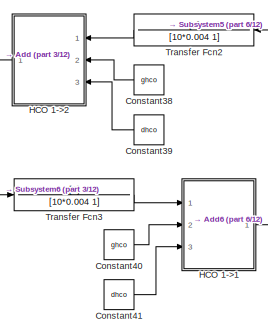
[diagram: root canvas - part 1/12, top center region]
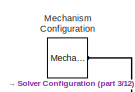
[diagram: root canvas - part 2/12, top center region]
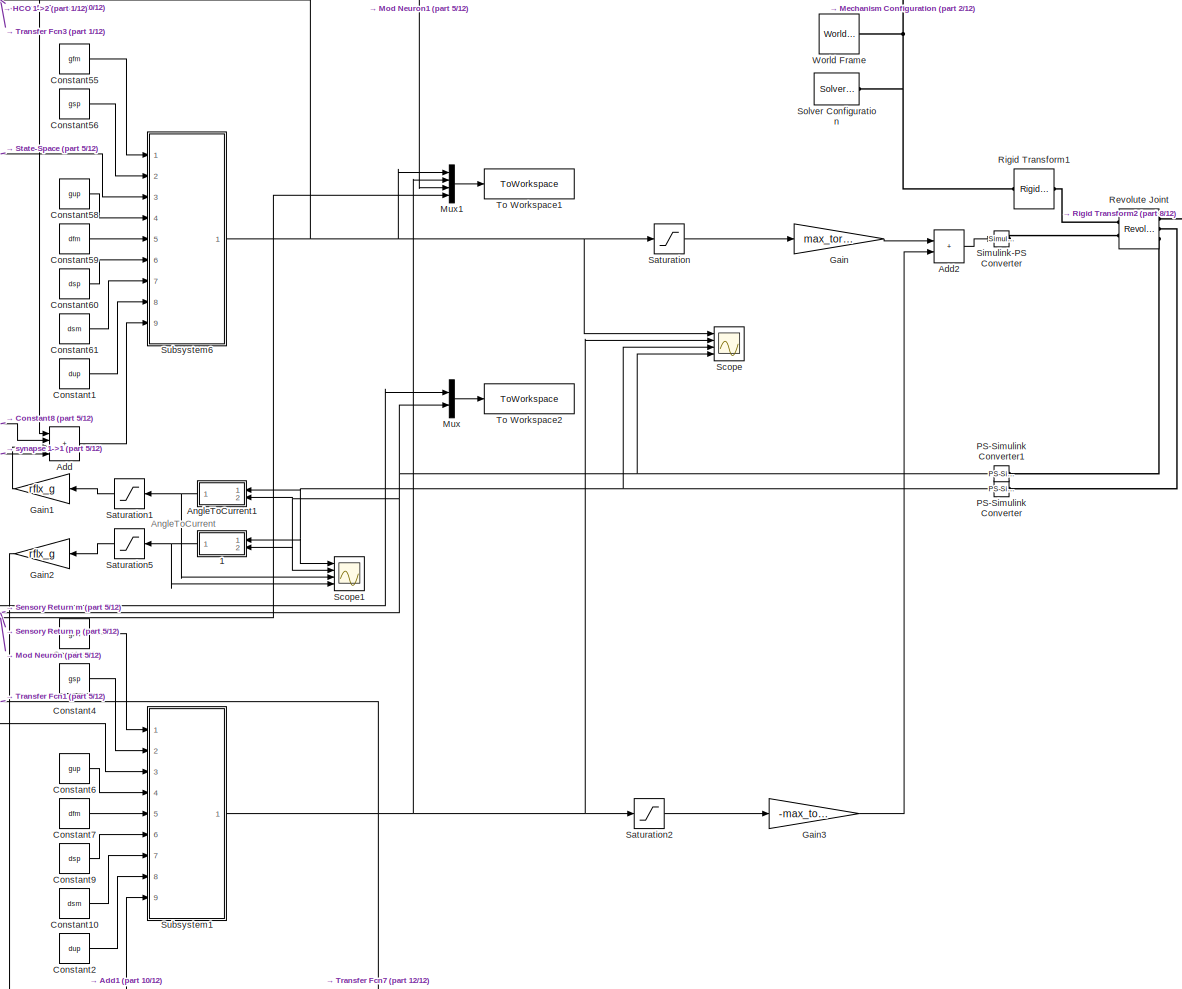
[diagram: root canvas - part 3/12, middle left region]
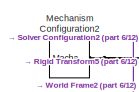
[diagram: root canvas - part 4/12, top right region]
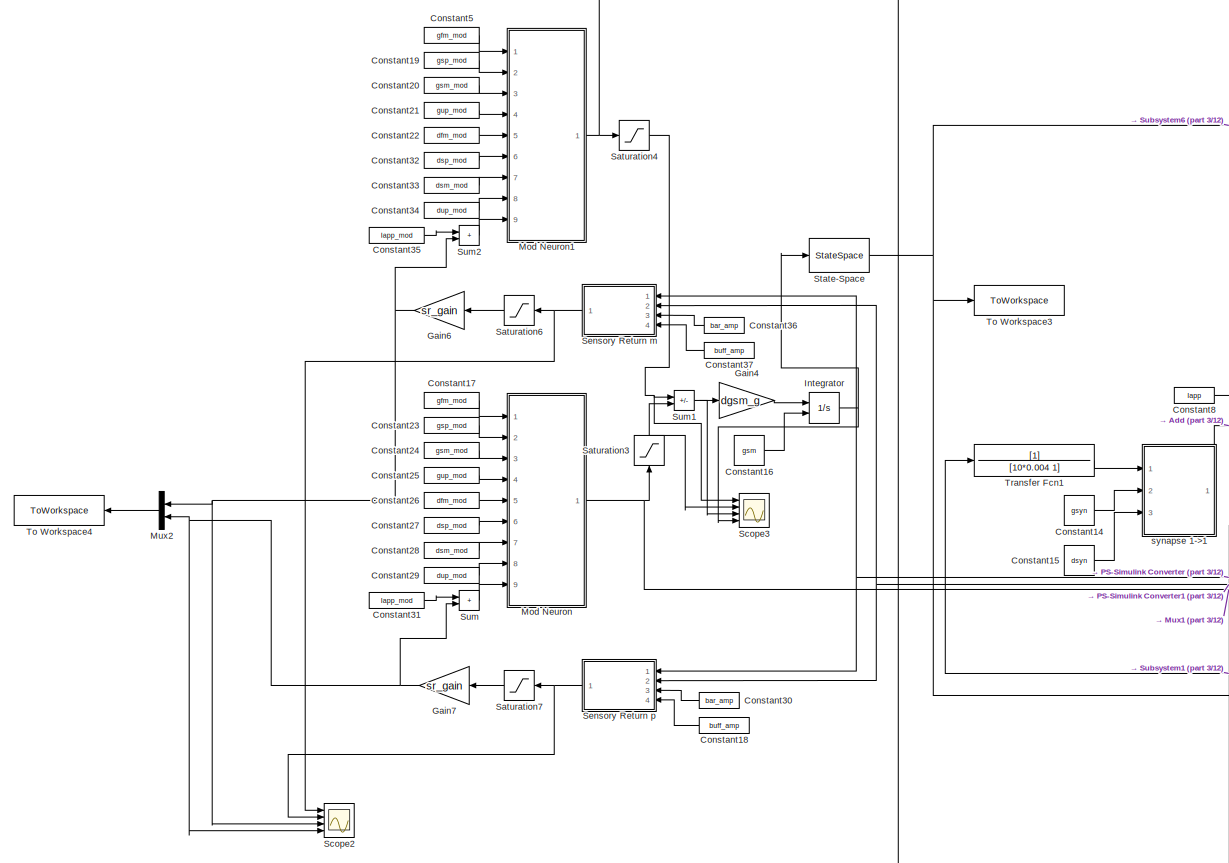
[diagram: root canvas - part 5/12, middle left region]
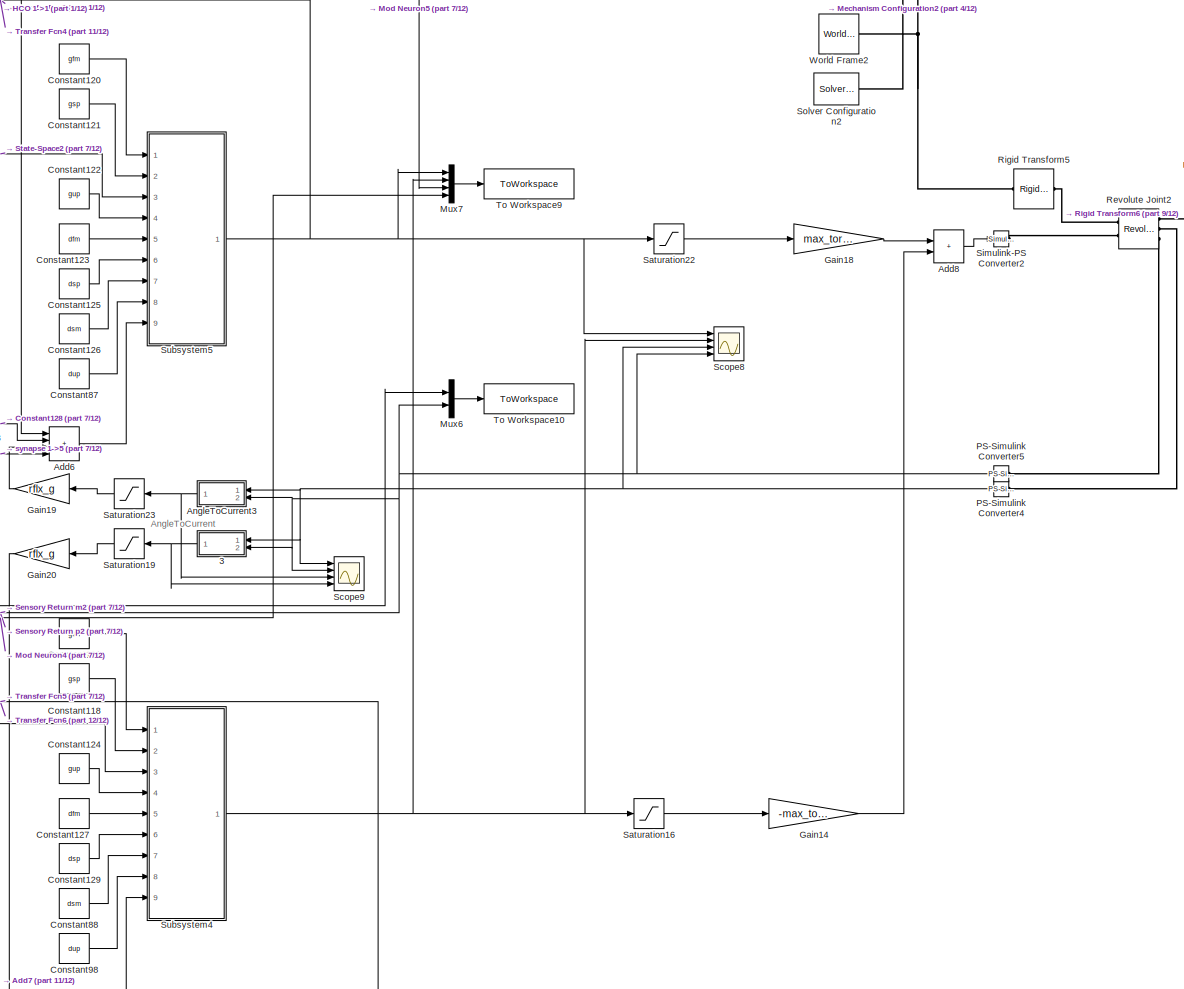
[diagram: root canvas - part 6/12, middle right region]
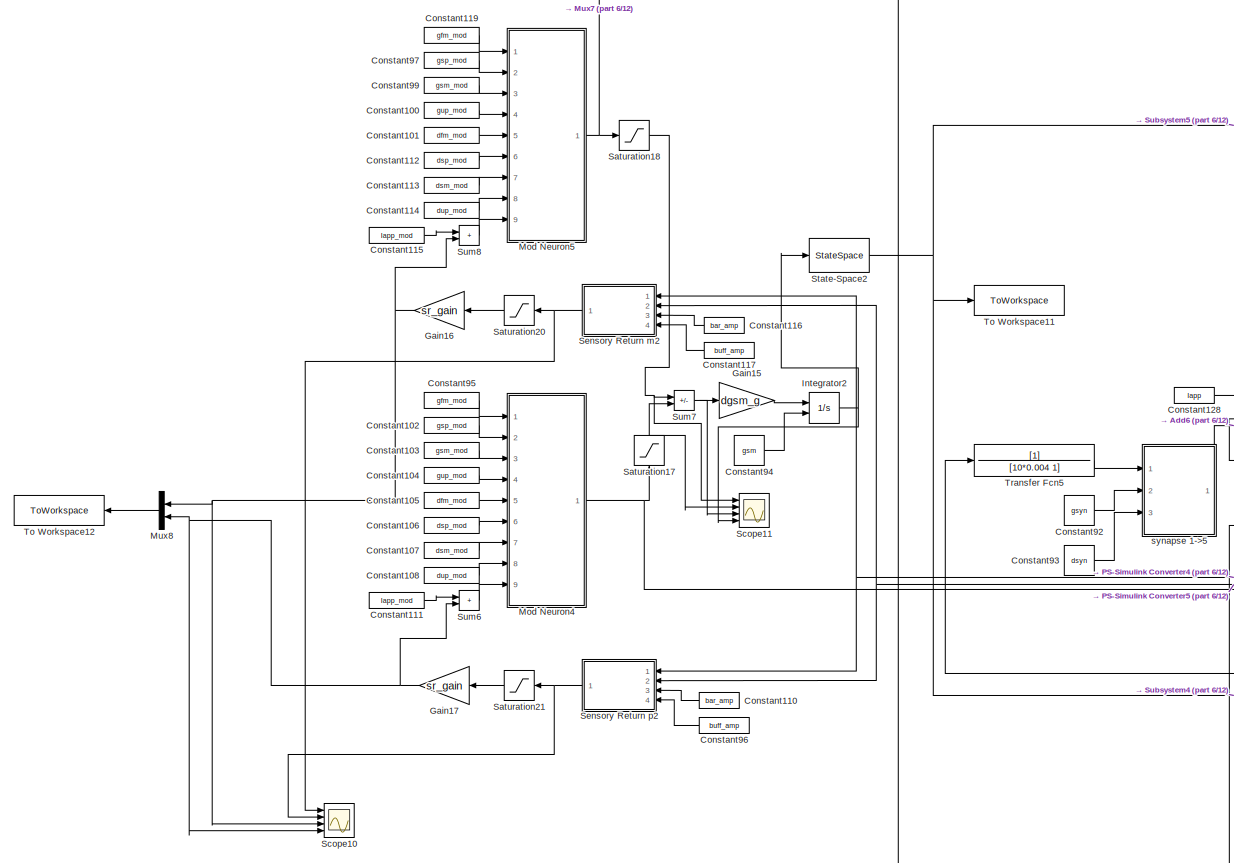
[diagram: root canvas - part 7/12, central region]
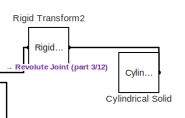
[diagram: root canvas - part 8/12, central region]
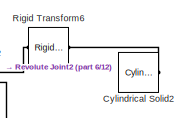
[diagram: root canvas - part 9/12, middle right region]
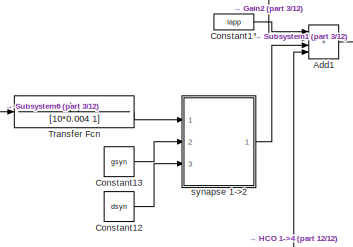
[diagram: root canvas - part 10/12, bottom left region]
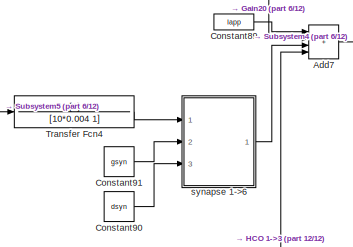
[diagram: root canvas - part 11/12, bottom right region]
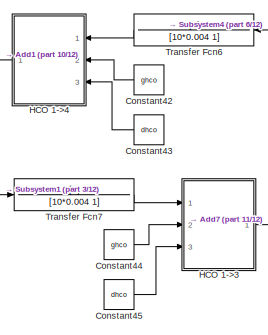
[diagram: root canvas - part 12/12, bottom center region]
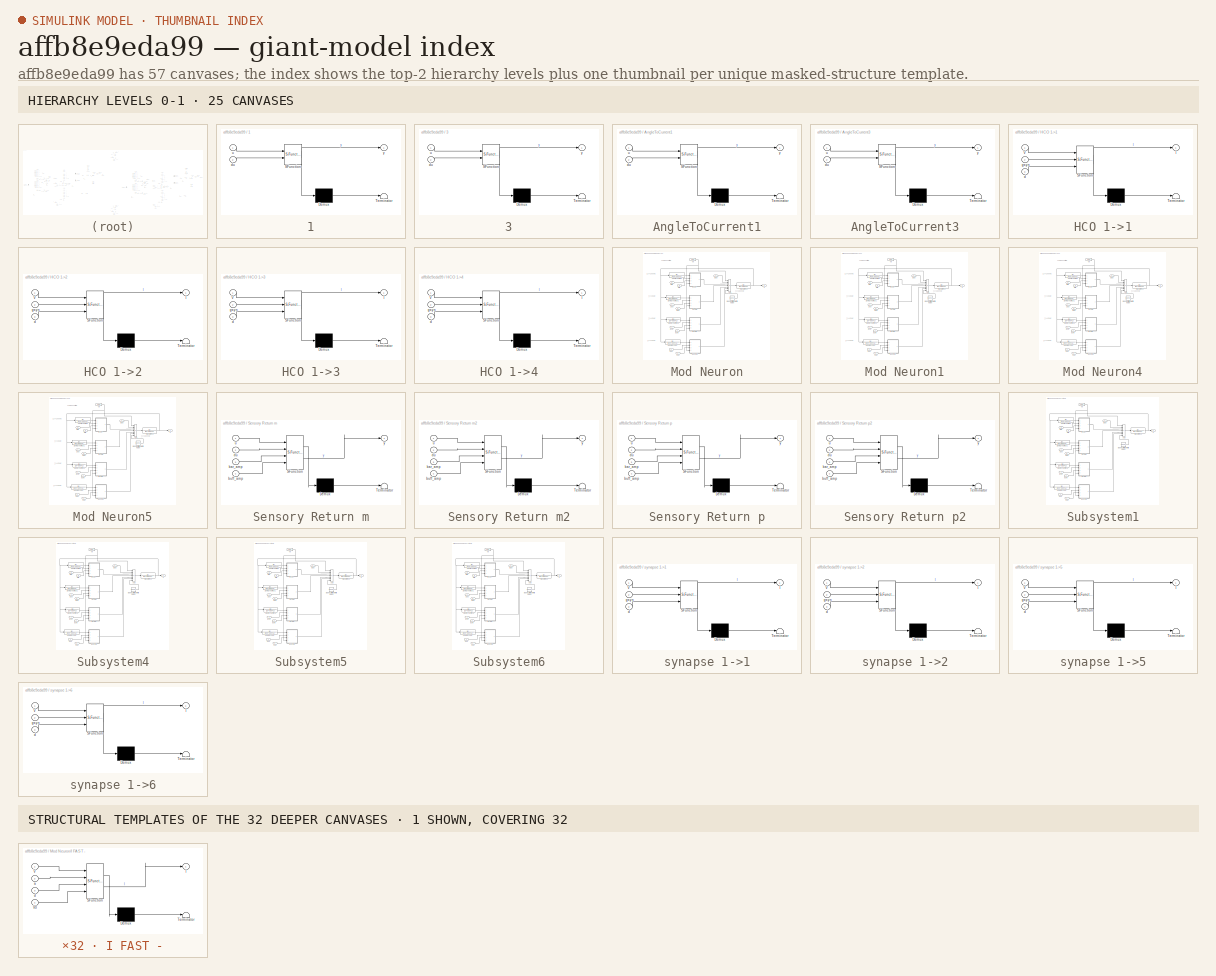
[diagram: thumbnail index - top-2 hierarchy levels (25 canvases) + 1 structural-template representatives of the remaining 32 canvases]
MODEL slx_affb8e9eda99
KIND model
CONFIG AbsTol = auto
CONFIG EnableMultiTasking = off
CONFIG FixedStep = auto
CONFIG MaxStep = auto
CONFIG MinStep = auto
CONFIG RelTol = 1e-3
CONFIG SampleTimeConstraint = Unconstrained
CONFIG SolverName = VariableStepAuto
CONFIG StartTime = 0.0
CONFIG StopTime = 20.0
BLOCK [SubSystem] 1
  ErrorFcn = Stateflow.Translate.translate
  NameLocation = left
  PermitHierarchicalResolution = ExplicitOnly
  Ports = [2, 1]
  RequestExecContextInheritance = off
  SFBlockType = MATLAB Function
  TreatAsAtomicUnit = on
BLOCK [Demux] 1/ Demux 
  Outputs = 1
  Ports = [1, 1]
BLOCK [S-Function] 1/ SFunction 
  EnableBusSupport = on
  FunctionName = sf_sfun
  PortCounts = [2 2]
  Ports = [2, 2]
  SFcnIsStateOwnerBlock = off
  SFunctionDeploymentMode = off
  Tag = Stateflow S-Function 7
BLOCK [Terminator] 1/ Terminator 
BLOCK [Inport] 1/du
  Port = 2
BLOCK [Inport] 1/u
BLOCK [Outport] 1/y
BLOCK [SubSystem] 3
  ErrorFcn = Stateflow.Translate.translate
  NameLocation = left
  PermitHierarchicalResolution = ExplicitOnly
  Ports = [2, 1]
  RequestExecContextInheritance = off
  SFBlockType = MATLAB Function
  TreatAsAtomicUnit = on
BLOCK [Demux] 3/ Demux 
  Outputs = 1
  Ports = [1, 1]
BLOCK [S-Function] 3/ SFunction 
  EnableBusSupport = on
  FunctionName = sf_sfun
  PortCounts = [2 2]
  Ports = [2, 2]
  SFcnIsStateOwnerBlock = off
  SFunctionDeploymentMode = off
  Tag = Stateflow S-Function 45
BLOCK [Terminator] 3/ Terminator 
BLOCK [Inport] 3/du
  Port = 2
BLOCK [Inport] 3/u
BLOCK [Outport] 3/y
BLOCK [Sum] Add
  IconShape = rectangular
  Inputs = ++++
  Ports = [4, 1]
BLOCK [Sum] Add1
  IconShape = rectangular
  Inputs = ++++
  Ports = [4, 1]
BLOCK [Sum] Add2
  IconShape = rectangular
  Ports = [2, 1]
BLOCK [Sum] Add6
  IconShape = rectangular
  Inputs = ++++
  Ports = [4, 1]
BLOCK [Sum] Add7
  IconShape = rectangular
  Inputs = ++++
  Ports = [4, 1]
BLOCK [Sum] Add8
  IconShape = rectangular
  Ports = [2, 1]
BLOCK [SubSystem] AngleToCurrent1
  ErrorFcn = Stateflow.Translate.translate
  NameLocation = top
  PermitHierarchicalResolution = ExplicitOnly
  Ports = [2, 1]
  RequestExecContextInheritance = off
  SFBlockType = MATLAB Function
  TreatAsAtomicUnit = on
BLOCK [Demux] AngleToCurrent1/ Demux 
  Outputs = 1
  Ports = [1, 1]
BLOCK [S-Function] AngleToCurrent1/ SFunction 
  EnableBusSupport = on
  FunctionName = sf_sfun
  PortCounts = [2 2]
  Ports = [2, 2]
  SFcnIsStateOwnerBlock = off
  SFunctionDeploymentMode = off
  Tag = Stateflow S-Function 19
BLOCK [Terminator] AngleToCurrent1/ Terminator 
BLOCK [Inport] AngleToCurrent1/du
  Port = 2
BLOCK [Inport] AngleToCurrent1/u
BLOCK [Outport] AngleToCurrent1/y
BLOCK [SubSystem] AngleToCurrent3
  ErrorFcn = Stateflow.Translate.translate
  NameLocation = top
  PermitHierarchicalResolution = ExplicitOnly
  Ports = [2, 1]
  RequestExecContextInheritance = off
  SFBlockType = MATLAB Function
  TreatAsAtomicUnit = on
BLOCK [Demux] AngleToCurrent3/ Demux 
  Outputs = 1
  Ports = [1, 1]
BLOCK [S-Function] AngleToCurrent3/ SFunction 
  EnableBusSupport = on
  FunctionName = sf_sfun
  PortCounts = [2 2]
  Ports = [2, 2]
  SFcnIsStateOwnerBlock = off
  SFunctionDeploymentMode = off
  Tag = Stateflow S-Function 46
BLOCK [Terminator] AngleToCurrent3/ Terminator 
BLOCK [Inport] AngleToCurrent3/du
  Port = 2
BLOCK [Inport] AngleToCurrent3/u
BLOCK [Outport] AngleToCurrent3/y
BLOCK [Constant] Constant1
  Value = dup
BLOCK [Constant] Constant10
  Value = dsm
BLOCK [Constant] Constant100
  Value = gup_mod
BLOCK [Constant] Constant101
  Value = dfm_mod
BLOCK [Constant] Constant102
  Value = gsp_mod
BLOCK [Constant] Constant103
  Value = gsm_mod
BLOCK [Constant] Constant104
  Value = gup_mod
BLOCK [Constant] Constant105
  Value = dfm_mod
BLOCK [Constant] Constant106
  Value = dsp_mod
BLOCK [Constant] Constant107
  Value = dsm_mod
BLOCK [Constant] Constant108
  Value = dup_mod
BLOCK [Constant] Constant109
  Value = gfm
BLOCK [Constant] Constant11
  Value = Iapp
BLOCK [Constant] Constant110
  Value = bar_amp
BLOCK [Constant] Constant111
  Value = Iapp_mod
BLOCK [Constant] Constant112
  Value = dsp_mod
BLOCK [Constant] Constant113
  Value = dsm_mod
BLOCK [Constant] Constant114
  Value = dup_mod
BLOCK [Constant] Constant115
  Value = Iapp_mod
BLOCK [Constant] Constant116
  Value = bar_amp
BLOCK [Constant] Constant117
  Value = buff_amp
BLOCK [Constant] Constant118
  Value = gsp
BLOCK [Constant] Constant119
  Value = gfm_mod
BLOCK [Constant] Constant12
  Value = dsyn
BLOCK [Constant] Constant120
  Value = gfm
BLOCK [Constant] Constant121
  Value = gsp
BLOCK [Constant] Constant122
  Value = gup
BLOCK [Constant] Constant123
  Value = dfm
BLOCK [Constant] Constant124
  Value = gup
BLOCK [Constant] Constant125
  Value = dsp
BLOCK [Constant] Constant126
  Value = dsm
BLOCK [Constant] Constant127
  Value = dfm
BLOCK [Constant] Constant128
  Value = Iapp
BLOCK [Constant] Constant129
  Value = dsp
BLOCK [Constant] Constant13
  Value = gsyn
BLOCK [Constant] Constant14
  Value = gsyn
BLOCK [Constant] Constant15
  Value = dsyn
BLOCK [Constant] Constant16
  Value = gsm
BLOCK [Constant] Constant17
  Value = gfm_mod
BLOCK [Constant] Constant18
  Value = buff_amp
BLOCK [Constant] Constant19
  Value = gsp_mod
BLOCK [Constant] Constant2
  Value = dup
BLOCK [Constant] Constant20
  Value = gsm_mod
BLOCK [Constant] Constant21
  Value = gup_mod
BLOCK [Constant] Constant22
  Value = dfm_mod
BLOCK [Constant] Constant23
  Value = gsp_mod
BLOCK [Constant] Constant24
  Value = gsm_mod
BLOCK [Constant] Constant25
  Value = gup_mod
BLOCK [Constant] Constant26
  Value = dfm_mod
BLOCK [Constant] Constant27
  Value = dsp_mod
BLOCK [Constant] Constant28
  Value = dsm_mod
BLOCK [Constant] Constant29
  Value = dup_mod
BLOCK [Constant] Constant3
  Value = gfm
BLOCK [Constant] Constant30
  Value = bar_amp
BLOCK [Constant] Constant31
  Value = Iapp_mod
BLOCK [Constant] Constant32
  Value = dsp_mod
BLOCK [Constant] Constant33
  Value = dsm_mod
BLOCK [Constant] Constant34
  Value = dup_mod
BLOCK [Constant] Constant35
  Value = Iapp_mod
BLOCK [Constant] Constant36
  Value = bar_amp
BLOCK [Constant] Constant37
  Value = buff_amp
BLOCK [Constant] Constant38
  Value = ghco
BLOCK [Constant] Constant39
  Value = dhco
BLOCK [Constant] Constant4
  Value = gsp
BLOCK [Constant] Constant40
  Value = ghco
BLOCK [Constant] Constant41
  Value = dhco
BLOCK [Constant] Constant42
  Value = ghco
BLOCK [Constant] Constant43
  Value = dhco
BLOCK [Constant] Constant44
  Value = ghco
BLOCK [Constant] Constant45
  Value = dhco
BLOCK [Constant] Constant5
  Value = gfm_mod
BLOCK [Constant] Constant55
  Value = gfm
BLOCK [Constant] Constant56
  Value = gsp
BLOCK [Constant] Constant58
  Value = gup
BLOCK [Constant] Constant59
  Value = dfm
BLOCK [Constant] Constant6
  Value = gup
BLOCK [Constant] Constant60
  Value = dsp
BLOCK [Constant] Constant61
  Value = dsm
BLOCK [Constant] Constant7
  Value = dfm
BLOCK [Constant] Constant8
  Value = Iapp
BLOCK [Constant] Constant87
  Value = dup
BLOCK [Constant] Constant88
  Value = dsm
BLOCK [Constant] Constant89
  Value = Iapp
BLOCK [Constant] Constant9
  Value = dsp
BLOCK [Constant] Constant90
  Value = dsyn
BLOCK [Constant] Constant91
  Value = gsyn
BLOCK [Constant] Constant92
  Value = gsyn
BLOCK [Constant] Constant93
  Value = dsyn
BLOCK [Constant] Constant94
  Value = gsm
BLOCK [Constant] Constant95
  Value = gfm_mod
BLOCK [Constant] Constant96
  Value = buff_amp
BLOCK [Constant] Constant97
  Value = gsp_mod
BLOCK [Constant] Constant98
  Value = dup
BLOCK [Constant] Constant99
  Value = gsm_mod
BLOCK [Reference] Cylindrical Solid  REF=sm_lib/Body Elements/Cylindrical Solid
  Ports = [0, 0, 0, 0, 0, 0, 1]
  SourceBlock = sm_lib/Body Elements/Cylindrical Solid
  SourceProductBaseCode = MS
  SourceType = Cylindrical Solid
BLOCK [Reference] Cylindrical Solid2  REF=sm_lib/Body Elements/Cylindrical Solid
  Ports = [0, 0, 0, 0, 0, 0, 1]
  SourceBlock = sm_lib/Body Elements/Cylindrical Solid
  SourceProductBaseCode = MS
  SourceType = Cylindrical Solid
BLOCK [Gain] Gain
  Gain = max_torque
BLOCK [Gain] Gain1
  Gain = rflx_g
BLOCK [Gain] Gain14
  Gain = -max_torque
BLOCK [Gain] Gain15
  Gain = dgsm_g
  NameLocation = top
BLOCK [Gain] Gain16
  Gain = sr_gain
BLOCK [Gain] Gain17
  Gain = sr_gain
BLOCK [Gain] Gain18
  Gain = max_torque
BLOCK [Gain] Gain19
  Gain = rflx_g
BLOCK [Gain] Gain2
  Gain = rflx_g
BLOCK [Gain] Gain20
  Gain = rflx_g
BLOCK [Gain] Gain3
  Gain = -max_torque
BLOCK [Gain] Gain4
  Gain = dgsm_g
  NameLocation = top
BLOCK [Gain] Gain6
  Gain = sr_gain
BLOCK [Gain] Gain7
  Gain = sr_gain
BLOCK [SubSystem] HCO 1->1
  ErrorFcn = Stateflow.Translate.translate
  PermitHierarchicalResolution = ExplicitOnly
  Ports = [3, 1]
  RequestExecContextInheritance = off
  SFBlockType = MATLAB Function
  TreatAsAtomicUnit = on
BLOCK [Demux] HCO 1->1/ Demux 
  Outputs = 1
  Ports = [1, 1]
BLOCK [S-Function] HCO 1->1/ SFunction 
  EnableBusSupport = on
  FunctionName = sf_sfun
  PortCounts = [3 2]
  Ports = [3, 2]
  SFcnIsStateOwnerBlock = off
  SFunctionDeploymentMode = off
  Tag = Stateflow S-Function 11
BLOCK [Terminator] HCO 1->1/ Terminator 
BLOCK [Outport] HCO 1->1/I
BLOCK [Inport] HCO 1->1/V
BLOCK [Inport] HCO 1->1/d
  Port = 3
BLOCK [Inport] HCO 1->1/gsyn
  Port = 2
BLOCK [SubSystem] HCO 1->2
  ErrorFcn = Stateflow.Translate.translate
  PermitHierarchicalResolution = ExplicitOnly
  Ports = [3, 1]
  RequestExecContextInheritance = off
  SFBlockType = MATLAB Function
  TreatAsAtomicUnit = on
BLOCK [Demux] HCO 1->2/ Demux 
  Outputs = 1
  Ports = [1, 1]
BLOCK [S-Function] HCO 1->2/ SFunction 
  EnableBusSupport = on
  FunctionName = sf_sfun
  PortCounts = [3 2]
  Ports = [3, 2]
  SFcnIsStateOwnerBlock = off
  SFunctionDeploymentMode = off
  Tag = Stateflow S-Function 20
BLOCK [Terminator] HCO 1->2/ Terminator 
BLOCK [Outport] HCO 1->2/I
BLOCK [Inport] HCO 1->2/V
BLOCK [Inport] HCO 1->2/d
  Port = 3
BLOCK [Inport] HCO 1->2/gsyn
  Port = 2
BLOCK [SubSystem] HCO 1->3
  ErrorFcn = Stateflow.Translate.translate
  PermitHierarchicalResolution = ExplicitOnly
  Ports = [3, 1]
  RequestExecContextInheritance = off
  SFBlockType = MATLAB Function
  TreatAsAtomicUnit = on
BLOCK [Demux] HCO 1->3/ Demux 
  Outputs = 1
  Ports = [1, 1]
BLOCK [S-Function] HCO 1->3/ SFunction 
  EnableBusSupport = on
  FunctionName = sf_sfun
  PortCounts = [3 2]
  Ports = [3, 2]
  SFcnIsStateOwnerBlock = off
  SFunctionDeploymentMode = off
  Tag = Stateflow S-Function 23
BLOCK [Terminator] HCO 1->3/ Terminator 
BLOCK [Outport] HCO 1->3/I
BLOCK [Inport] HCO 1->3/V
BLOCK [Inport] HCO 1->3/d
  Port = 3
BLOCK [Inport] HCO 1->3/gsyn
  Port = 2
BLOCK [SubSystem] HCO 1->4
  ErrorFcn = Stateflow.Translate.translate
  PermitHierarchicalResolution = ExplicitOnly
  Ports = [3, 1]
  RequestExecContextInheritance = off
  SFBlockType = MATLAB Function
  TreatAsAtomicUnit = on
BLOCK [Demux] HCO 1->4/ Demux 
  Outputs = 1
  Ports = [1, 1]
BLOCK [S-Function] HCO 1->4/ SFunction 
  EnableBusSupport = on
  FunctionName = sf_sfun
  PortCounts = [3 2]
  Ports = [3, 2]
  SFcnIsStateOwnerBlock = off
  SFunctionDeploymentMode = off
  Tag = Stateflow S-Function 24
BLOCK [Terminator] HCO 1->4/ Terminator 
BLOCK [Outport] HCO 1->4/I
BLOCK [Inport] HCO 1->4/V
BLOCK [Inport] HCO 1->4/d
  Port = 3
BLOCK [Inport] HCO 1->4/gsyn
  Port = 2
BLOCK [Integrator] Integrator
  InitialConditionSource = external
  Ports = [2, 1]
BLOCK [Integrator] Integrator2
  InitialConditionSource = external
  Ports = [2, 1]
BLOCK [Reference] Mechanism Configuration  REF=sm_lib/Utilities/Mechanism
Configuration
  Ports = [0, 0, 0, 0, 0, 0, 1]
  SourceBlock = sm_lib/Utilities/Mechanism\nConfiguration
  SourceProductBaseCode = MS
  SourceType = Mechanism\nConfiguration
BLOCK [Reference] Mechanism Configuration2  REF=sm_lib/Utilities/Mechanism
Configuration
  Ports = [0, 0, 0, 0, 0, 0, 1]
  SourceBlock = sm_lib/Utilities/Mechanism\nConfiguration
  SourceProductBaseCode = MS
  SourceType = Mechanism\nConfiguration
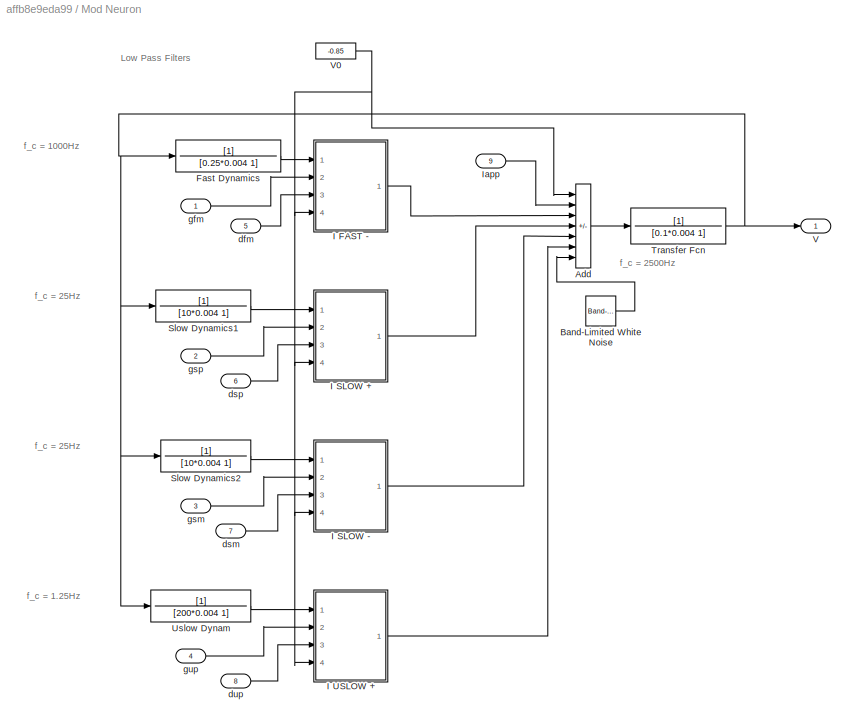
BLOCK [SubSystem] Mod Neuron
  Ports = [9, 1]
  RequestExecContextInheritance = off
BLOCK [Sum] Mod Neuron/Add
  IconShape = rectangular
  Inputs = ++----+
  Ports = [7, 1]
BLOCK [Reference] Mod Neuron/Band-Limited White Noise  REF=simulink/Sources/Band-Limited
White Noise
  Ports = [0, 1]
  SourceBlock = simulink/Sources/Band-Limited\nWhite Noise
  SourceProductBaseCode = SL
  SourceType = Band-Limited White Noise.
BLOCK [TransferFcn] Mod Neuron/Fast Dynamics
  Denominator = [0.25*0.004 1]
BLOCK [SubSystem] Mod Neuron/I FAST -
  ErrorFcn = Stateflow.Translate.translate
  PermitHierarchicalResolution = ExplicitOnly
  Ports = [4, 1]
  RequestExecContextInheritance = off
  SFBlockType = MATLAB Function
  TreatAsAtomicUnit = on
BLOCK [Demux] Mod Neuron/I FAST -/ Demux 
  Outputs = 1
  Ports = [1, 1]
BLOCK [S-Function] Mod Neuron/I FAST -/ SFunction 
  EnableBusSupport = on
  FunctionName = sf_sfun
  PortCounts = [4 2]
  Ports = [4, 2]
  SFcnIsStateOwnerBlock = off
  SFunctionDeploymentMode = off
  Tag = Stateflow S-Function 6
BLOCK [Terminator] Mod Neuron/I FAST -/ Terminator 
BLOCK [Outport] Mod Neuron/I FAST -/I
BLOCK [Inport] Mod Neuron/I FAST -/V
BLOCK [Inport] Mod Neuron/I FAST -/V0
  Port = 4
BLOCK [Inport] Mod Neuron/I FAST -/a
  Port = 2
BLOCK [Inport] Mod Neuron/I FAST -/d
  Port = 3
BLOCK [SubSystem] Mod Neuron/I SLOW +
  ErrorFcn = Stateflow.Translate.translate
  PermitHierarchicalResolution = ExplicitOnly
  Ports = [4, 1]
  RequestExecContextInheritance = off
  SFBlockType = MATLAB Function
  TreatAsAtomicUnit = on
BLOCK [Demux] Mod Neuron/I SLOW +/ Demux 
  Outputs = 1
  Ports = [1, 1]
BLOCK [S-Function] Mod Neuron/I SLOW +/ SFunction 
  EnableBusSupport = on
  FunctionName = sf_sfun
  PortCounts = [4 2]
  Ports = [4, 2]
  SFcnIsStateOwnerBlock = off
  SFunctionDeploymentMode = off
  Tag = Stateflow S-Function 14
BLOCK [Terminator] Mod Neuron/I SLOW +/ Terminator 
BLOCK [Outport] Mod Neuron/I SLOW +/I
BLOCK [Inport] Mod Neuron/I SLOW +/V
BLOCK [Inport] Mod Neuron/I SLOW +/V0
  Port = 4
BLOCK [Inport] Mod Neuron/I SLOW +/a
  Port = 2
BLOCK [Inport] Mod Neuron/I SLOW +/d
  Port = 3
BLOCK [SubSystem] Mod Neuron/I SLOW -
  ErrorFcn = Stateflow.Translate.translate
  PermitHierarchicalResolution = ExplicitOnly
  Ports = [4, 1]
  RequestExecContextInheritance = off
  SFBlockType = MATLAB Function
  TreatAsAtomicUnit = on
BLOCK [Demux] Mod Neuron/I SLOW -/ Demux 
  Outputs = 1
  Ports = [1, 1]
BLOCK [S-Function] Mod Neuron/I SLOW -/ SFunction 
  EnableBusSupport = on
  FunctionName = sf_sfun
  PortCounts = [4 2]
  Ports = [4, 2]
  SFcnIsStateOwnerBlock = off
  SFunctionDeploymentMode = off
  Tag = Stateflow S-Function 15
BLOCK [Terminator] Mod Neuron/I SLOW -/ Terminator 
BLOCK [Outport] Mod Neuron/I SLOW -/I
BLOCK [Inport] Mod Neuron/I SLOW -/V
BLOCK [Inport] Mod Neuron/I SLOW -/V0
  Port = 4
BLOCK [Inport] Mod Neuron/I SLOW -/a
  Port = 2
BLOCK [Inport] Mod Neuron/I SLOW -/d
  Port = 3
BLOCK [SubSystem] Mod Neuron/I USLOW +
  ErrorFcn = Stateflow.Translate.translate
  PermitHierarchicalResolution = ExplicitOnly
  Ports = [4, 1]
  RequestExecContextInheritance = off
  SFBlockType = MATLAB Function
  TreatAsAtomicUnit = on
BLOCK [Demux] Mod Neuron/I USLOW +/ Demux 
  Outputs = 1
  Ports = [1, 1]
BLOCK [S-Function] Mod Neuron/I USLOW +/ SFunction 
  EnableBusSupport = on
  FunctionName = sf_sfun
  PortCounts = [4 2]
  Ports = [4, 2]
  SFcnIsStateOwnerBlock = off
  SFunctionDeploymentMode = off
  Tag = Stateflow S-Function 16
BLOCK [Terminator] Mod Neuron/I USLOW +/ Terminator 
BLOCK [Outport] Mod Neuron/I USLOW +/I
BLOCK [Inport] Mod Neuron/I USLOW +/V
BLOCK [Inport] Mod Neuron/I USLOW +/V0
  Port = 4
BLOCK [Inport] Mod Neuron/I USLOW +/a
  Port = 2
BLOCK [Inport] Mod Neuron/I USLOW +/d
  Port = 3
BLOCK [Inport] Mod Neuron/Iapp
  Port = 9
BLOCK [TransferFcn] Mod Neuron/Slow Dynamics1
  Denominator = [10*0.004 1]
BLOCK [TransferFcn] Mod Neuron/Slow Dynamics2
  Denominator = [10*0.004 1]
BLOCK [TransferFcn] Mod Neuron/Transfer Fcn
  Denominator = [0.1*0.004 1]
BLOCK [TransferFcn] Mod Neuron/Uslow Dynam
  Denominator = [200*0.004 1]
BLOCK [Outport] Mod Neuron/V
BLOCK [Constant] Mod Neuron/V0
  Value = -0.85
BLOCK [Inport] Mod Neuron/dfm
  Port = 5
BLOCK [Inport] Mod Neuron/dsm
  Port = 7
BLOCK [Inport] Mod Neuron/dsp
  Port = 6
BLOCK [Inport] Mod Neuron/dup
  Port = 8
BLOCK [Inport] Mod Neuron/gfm
BLOCK [Inport] Mod Neuron/gsm
  Port = 3
BLOCK [Inport] Mod Neuron/gsp
  Port = 2
BLOCK [Inport] Mod Neuron/gup
  Port = 4
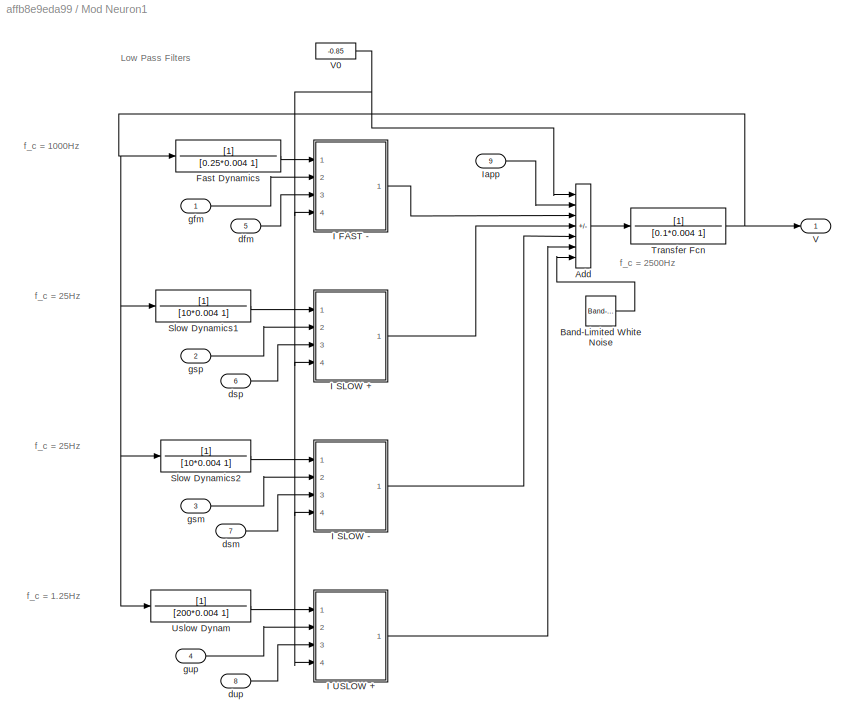
BLOCK [SubSystem] Mod Neuron1
  Ports = [9, 1]
  RequestExecContextInheritance = off
BLOCK [Sum] Mod Neuron1/Add
  IconShape = rectangular
  Inputs = ++----+
  Ports = [7, 1]
BLOCK [Reference] Mod Neuron1/Band-Limited White Noise  REF=simulink/Sources/Band-Limited
White Noise
  Ports = [0, 1]
  SourceBlock = simulink/Sources/Band-Limited\nWhite Noise
  SourceProductBaseCode = SL
  SourceType = Band-Limited White Noise.
BLOCK [TransferFcn] Mod Neuron1/Fast Dynamics
  Denominator = [0.25*0.004 1]
BLOCK [SubSystem] Mod Neuron1/I FAST -
  ErrorFcn = Stateflow.Translate.translate
  PermitHierarchicalResolution = ExplicitOnly
  Ports = [4, 1]
  RequestExecContextInheritance = off
  SFBlockType = MATLAB Function
  TreatAsAtomicUnit = on
BLOCK [Demux] Mod Neuron1/I FAST -/ Demux 
  Outputs = 1
  Ports = [1, 1]
BLOCK [S-Function] Mod Neuron1/I FAST -/ SFunction 
  EnableBusSupport = on
  FunctionName = sf_sfun
  PortCounts = [4 2]
  Ports = [4, 2]
  SFcnIsStateOwnerBlock = off
  SFunctionDeploymentMode = off
  Tag = Stateflow S-Function 8
BLOCK [Terminator] Mod Neuron1/I FAST -/ Terminator 
BLOCK [Outport] Mod Neuron1/I FAST -/I
BLOCK [Inport] Mod Neuron1/I FAST -/V
BLOCK [Inport] Mod Neuron1/I FAST -/V0
  Port = 4
BLOCK [Inport] Mod Neuron1/I FAST -/a
  Port = 2
BLOCK [Inport] Mod Neuron1/I FAST -/d
  Port = 3
BLOCK [SubSystem] Mod Neuron1/I SLOW +
  ErrorFcn = Stateflow.Translate.translate
  PermitHierarchicalResolution = ExplicitOnly
  Ports = [4, 1]
  RequestExecContextInheritance = off
  SFBlockType = MATLAB Function
  TreatAsAtomicUnit = on
BLOCK [Demux] Mod Neuron1/I SLOW +/ Demux 
  Outputs = 1
  Ports = [1, 1]
BLOCK [S-Function] Mod Neuron1/I SLOW +/ SFunction 
  EnableBusSupport = on
  FunctionName = sf_sfun
  PortCounts = [4 2]
  Ports = [4, 2]
  SFcnIsStateOwnerBlock = off
  SFunctionDeploymentMode = off
  Tag = Stateflow S-Function 9
BLOCK [Terminator] Mod Neuron1/I SLOW +/ Terminator 
BLOCK [Outport] Mod Neuron1/I SLOW +/I
BLOCK [Inport] Mod Neuron1/I SLOW +/V
BLOCK [Inport] Mod Neuron1/I SLOW +/V0
  Port = 4
BLOCK [Inport] Mod Neuron1/I SLOW +/a
  Port = 2
BLOCK [Inport] Mod Neuron1/I SLOW +/d
  Port = 3
BLOCK [SubSystem] Mod Neuron1/I SLOW -
  ErrorFcn = Stateflow.Translate.translate
  PermitHierarchicalResolution = ExplicitOnly
  Ports = [4, 1]
  RequestExecContextInheritance = off
  SFBlockType = MATLAB Function
  TreatAsAtomicUnit = on
BLOCK [Demux] Mod Neuron1/I SLOW -/ Demux 
  Outputs = 1
  Ports = [1, 1]
BLOCK [S-Function] Mod Neuron1/I SLOW -/ SFunction 
  EnableBusSupport = on
  FunctionName = sf_sfun
  PortCounts = [4 2]
  Ports = [4, 2]
  SFcnIsStateOwnerBlock = off
  SFunctionDeploymentMode = off
  Tag = Stateflow S-Function 10
BLOCK [Terminator] Mod Neuron1/I SLOW -/ Terminator 
BLOCK [Outport] Mod Neuron1/I SLOW -/I
BLOCK [Inport] Mod Neuron1/I SLOW -/V
BLOCK [Inport] Mod Neuron1/I SLOW -/V0
  Port = 4
BLOCK [Inport] Mod Neuron1/I SLOW -/a
  Port = 2
BLOCK [Inport] Mod Neuron1/I SLOW -/d
  Port = 3
BLOCK [SubSystem] Mod Neuron1/I USLOW +
  ErrorFcn = Stateflow.Translate.translate
  PermitHierarchicalResolution = ExplicitOnly
  Ports = [4, 1]
  RequestExecContextInheritance = off
  SFBlockType = MATLAB Function
  TreatAsAtomicUnit = on
BLOCK [Demux] Mod Neuron1/I USLOW +/ Demux 
  Outputs = 1
  Ports = [1, 1]
BLOCK [S-Function] Mod Neuron1/I USLOW +/ SFunction 
  EnableBusSupport = on
  FunctionName = sf_sfun
  PortCounts = [4 2]
  Ports = [4, 2]
  SFcnIsStateOwnerBlock = off
  SFunctionDeploymentMode = off
  Tag = Stateflow S-Function 12
BLOCK [Terminator] Mod Neuron1/I USLOW +/ Terminator 
BLOCK [Outport] Mod Neuron1/I USLOW +/I
BLOCK [Inport] Mod Neuron1/I USLOW +/V
BLOCK [Inport] Mod Neuron1/I USLOW +/V0
  Port = 4
BLOCK [Inport] Mod Neuron1/I USLOW +/a
  Port = 2
BLOCK [Inport] Mod Neuron1/I USLOW +/d
  Port = 3
BLOCK [Inport] Mod Neuron1/Iapp
  Port = 9
BLOCK [TransferFcn] Mod Neuron1/Slow Dynamics1
  Denominator = [10*0.004 1]
BLOCK [TransferFcn] Mod Neuron1/Slow Dynamics2
  Denominator = [10*0.004 1]
BLOCK [TransferFcn] Mod Neuron1/Transfer Fcn
  Denominator = [0.1*0.004 1]
BLOCK [TransferFcn] Mod Neuron1/Uslow Dynam
  Denominator = [200*0.004 1]
BLOCK [Outport] Mod Neuron1/V
BLOCK [Constant] Mod Neuron1/V0
  Value = -0.85
BLOCK [Inport] Mod Neuron1/dfm
  Port = 5
BLOCK [Inport] Mod Neuron1/dsm
  Port = 7
BLOCK [Inport] Mod Neuron1/dsp
  Port = 6
BLOCK [Inport] Mod Neuron1/dup
  Port = 8
BLOCK [Inport] Mod Neuron1/gfm
BLOCK [Inport] Mod Neuron1/gsm
  Port = 3
BLOCK [Inport] Mod Neuron1/gsp
  Port = 2
BLOCK [Inport] Mod Neuron1/gup
  Port = 4
BLOCK [SubSystem] Mod Neuron4
  Ports = [9, 1]
  RequestExecContextInheritance = off
BLOCK [Sum] Mod Neuron4/Add
  IconShape = rectangular
  Inputs = ++----+
  Ports = [7, 1]
BLOCK [Reference] Mod Neuron4/Band-Limited White Noise  REF=simulink/Sources/Band-Limited
White Noise
  Ports = [0, 1]
  SourceBlock = simulink/Sources/Band-Limited\nWhite Noise
  SourceProductBaseCode = SL
  SourceType = Band-Limited White Noise.
BLOCK [TransferFcn] Mod Neuron4/Fast Dynamics
  Denominator = [0.25*0.004 1]
BLOCK [SubSystem] Mod Neuron4/I FAST -
  ErrorFcn = Stateflow.Translate.translate
  PermitHierarchicalResolution = ExplicitOnly
  Ports = [4, 1]
  RequestExecContextInheritance = off
  SFBlockType = MATLAB Function
  TreatAsAtomicUnit = on
BLOCK [Demux] Mod Neuron4/I FAST -/ Demux 
  Outputs = 1
  Ports = [1, 1]
BLOCK [S-Function] Mod Neuron4/I FAST -/ SFunction 
  EnableBusSupport = on
  FunctionName = sf_sfun
  PortCounts = [4 2]
  Ports = [4, 2]
  SFcnIsStateOwnerBlock = off
  SFunctionDeploymentMode = off
  Tag = Stateflow S-Function 47
BLOCK [Terminator] Mod Neuron4/I FAST -/ Terminator 
BLOCK [Outport] Mod Neuron4/I FAST -/I
BLOCK [Inport] Mod Neuron4/I FAST -/V
BLOCK [Inport] Mod Neuron4/I FAST -/V0
  Port = 4
BLOCK [Inport] Mod Neuron4/I FAST -/a
  Port = 2
BLOCK [Inport] Mod Neuron4/I FAST -/d
  Port = 3
BLOCK [SubSystem] Mod Neuron4/I SLOW +
  ErrorFcn = Stateflow.Translate.translate
  PermitHierarchicalResolution = ExplicitOnly
  Ports = [4, 1]
  RequestExecContextInheritance = off
  SFBlockType = MATLAB Function
  TreatAsAtomicUnit = on
BLOCK [Demux] Mod Neuron4/I SLOW +/ Demux 
  Outputs = 1
  Ports = [1, 1]
BLOCK [S-Function] Mod Neuron4/I SLOW +/ SFunction 
  EnableBusSupport = on
  FunctionName = sf_sfun
  PortCounts = [4 2]
  Ports = [4, 2]
  SFcnIsStateOwnerBlock = off
  SFunctionDeploymentMode = off
  Tag = Stateflow S-Function 48
BLOCK [Terminator] Mod Neuron4/I SLOW +/ Terminator 
BLOCK [Outport] Mod Neuron4/I SLOW +/I
BLOCK [Inport] Mod Neuron4/I SLOW +/V
BLOCK [Inport] Mod Neuron4/I SLOW +/V0
  Port = 4
BLOCK [Inport] Mod Neuron4/I SLOW +/a
  Port = 2
BLOCK [Inport] Mod Neuron4/I SLOW +/d
  Port = 3
BLOCK [SubSystem] Mod Neuron4/I SLOW -
  ErrorFcn = Stateflow.Translate.translate
  PermitHierarchicalResolution = ExplicitOnly
  Ports = [4, 1]
  RequestExecContextInheritance = off
  SFBlockType = MATLAB Function
  TreatAsAtomicUnit = on
BLOCK [Demux] Mod Neuron4/I SLOW -/ Demux 
  Outputs = 1
  Ports = [1, 1]
BLOCK [S-Function] Mod Neuron4/I SLOW -/ SFunction 
  EnableBusSupport = on
  FunctionName = sf_sfun
  PortCounts = [4 2]
  Ports = [4, 2]
  SFcnIsStateOwnerBlock = off
  SFunctionDeploymentMode = off
  Tag = Stateflow S-Function 49
BLOCK [Terminator] Mod Neuron4/I SLOW -/ Terminator 
BLOCK [Outport] Mod Neuron4/I SLOW -/I
BLOCK [Inport] Mod Neuron4/I SLOW -/V
BLOCK [Inport] Mod Neuron4/I SLOW -/V0
  Port = 4
BLOCK [Inport] Mod Neuron4/I SLOW -/a
  Port = 2
BLOCK [Inport] Mod Neuron4/I SLOW -/d
  Port = 3
BLOCK [SubSystem] Mod Neuron4/I USLOW +
  ErrorFcn = Stateflow.Translate.translate
  PermitHierarchicalResolution = ExplicitOnly
  Ports = [4, 1]
  RequestExecContextInheritance = off
  SFBlockType = MATLAB Function
  TreatAsAtomicUnit = on
BLOCK [Demux] Mod Neuron4/I USLOW +/ Demux 
  Outputs = 1
  Ports = [1, 1]
BLOCK [S-Function] Mod Neuron4/I USLOW +/ SFunction 
  EnableBusSupport = on
  FunctionName = sf_sfun
  PortCounts = [4 2]
  Ports = [4, 2]
  SFcnIsStateOwnerBlock = off
  SFunctionDeploymentMode = off
  Tag = Stateflow S-Function 50
BLOCK [Terminator] Mod Neuron4/I USLOW +/ Terminator 
BLOCK [Outport] Mod Neuron4/I USLOW +/I
BLOCK [Inport] Mod Neuron4/I USLOW +/V
BLOCK [Inport] Mod Neuron4/I USLOW +/V0
  Port = 4
BLOCK [Inport] Mod Neuron4/I USLOW +/a
  Port = 2
BLOCK [Inport] Mod Neuron4/I USLOW +/d
  Port = 3
BLOCK [Inport] Mod Neuron4/Iapp
  Port = 9
BLOCK [TransferFcn] Mod Neuron4/Slow Dynamics1
  Denominator = [10*0.004 1]
BLOCK [TransferFcn] Mod Neuron4/Slow Dynamics2
  Denominator = [10*0.004 1]
BLOCK [TransferFcn] Mod Neuron4/Transfer Fcn
  Denominator = [0.1*0.004 1]
BLOCK [TransferFcn] Mod Neuron4/Uslow Dynam
  Denominator = [200*0.004 1]
BLOCK [Outport] Mod Neuron4/V
BLOCK [Constant] Mod Neuron4/V0
  Value = -0.85
BLOCK [Inport] Mod Neuron4/dfm
  Port = 5
BLOCK [Inport] Mod Neuron4/dsm
  Port = 7
BLOCK [Inport] Mod Neuron4/dsp
  Port = 6
BLOCK [Inport] Mod Neuron4/dup
  Port = 8
BLOCK [Inport] Mod Neuron4/gfm
BLOCK [Inport] Mod Neuron4/gsm
  Port = 3
BLOCK [Inport] Mod Neuron4/gsp
  Port = 2
BLOCK [Inport] Mod Neuron4/gup
  Port = 4
BLOCK [SubSystem] Mod Neuron5
  Ports = [9, 1]
  RequestExecContextInheritance = off
BLOCK [Sum] Mod Neuron5/Add
  IconShape = rectangular
  Inputs = ++----+
  Ports = [7, 1]
BLOCK [Reference] Mod Neuron5/Band-Limited White Noise  REF=simulink/Sources/Band-Limited
White Noise
  Ports = [0, 1]
  SourceBlock = simulink/Sources/Band-Limited\nWhite Noise
  SourceProductBaseCode = SL
  SourceType = Band-Limited White Noise.
BLOCK [TransferFcn] Mod Neuron5/Fast Dynamics
  Denominator = [0.25*0.004 1]
BLOCK [SubSystem] Mod Neuron5/I FAST -
  ErrorFcn = Stateflow.Translate.translate
  PermitHierarchicalResolution = ExplicitOnly
  Ports = [4, 1]
  RequestExecContextInheritance = off
  SFBlockType = MATLAB Function
  TreatAsAtomicUnit = on
BLOCK [Demux] Mod Neuron5/I FAST -/ Demux 
  Outputs = 1
  Ports = [1, 1]
BLOCK [S-Function] Mod Neuron5/I FAST -/ SFunction 
  EnableBusSupport = on
  FunctionName = sf_sfun
  PortCounts = [4 2]
  Ports = [4, 2]
  SFcnIsStateOwnerBlock = off
  SFunctionDeploymentMode = off
  Tag = Stateflow S-Function 51
BLOCK [Terminator] Mod Neuron5/I FAST -/ Terminator 
BLOCK [Outport] Mod Neuron5/I FAST -/I
BLOCK [Inport] Mod Neuron5/I FAST -/V
BLOCK [Inport] Mod Neuron5/I FAST -/V0
  Port = 4
BLOCK [Inport] Mod Neuron5/I FAST -/a
  Port = 2
BLOCK [Inport] Mod Neuron5/I FAST -/d
  Port = 3
BLOCK [SubSystem] Mod Neuron5/I SLOW +
  ErrorFcn = Stateflow.Translate.translate
  PermitHierarchicalResolution = ExplicitOnly
  Ports = [4, 1]
  RequestExecContextInheritance = off
  SFBlockType = MATLAB Function
  TreatAsAtomicUnit = on
BLOCK [Demux] Mod Neuron5/I SLOW +/ Demux 
  Outputs = 1
  Ports = [1, 1]
BLOCK [S-Function] Mod Neuron5/I SLOW +/ SFunction 
  EnableBusSupport = on
  FunctionName = sf_sfun
  PortCounts = [4 2]
  Ports = [4, 2]
  SFcnIsStateOwnerBlock = off
  SFunctionDeploymentMode = off
  Tag = Stateflow S-Function 52
BLOCK [Terminator] Mod Neuron5/I SLOW +/ Terminator 
BLOCK [Outport] Mod Neuron5/I SLOW +/I
BLOCK [Inport] Mod Neuron5/I SLOW +/V
BLOCK [Inport] Mod Neuron5/I SLOW +/V0
  Port = 4
BLOCK [Inport] Mod Neuron5/I SLOW +/a
  Port = 2
BLOCK [Inport] Mod Neuron5/I SLOW +/d
  Port = 3
BLOCK [SubSystem] Mod Neuron5/I SLOW -
  ErrorFcn = Stateflow.Translate.translate
  PermitHierarchicalResolution = ExplicitOnly
  Ports = [4, 1]
  RequestExecContextInheritance = off
  SFBlockType = MATLAB Function
  TreatAsAtomicUnit = on
BLOCK [Demux] Mod Neuron5/I SLOW -/ Demux 
  Outputs = 1
  Ports = [1, 1]
BLOCK [S-Function] Mod Neuron5/I SLOW -/ SFunction 
  EnableBusSupport = on
  FunctionName = sf_sfun
  PortCounts = [4 2]
  Ports = [4, 2]
  SFcnIsStateOwnerBlock = off
  SFunctionDeploymentMode = off
  Tag = Stateflow S-Function 53
BLOCK [Terminator] Mod Neuron5/I SLOW -/ Terminator 
BLOCK [Outport] Mod Neuron5/I SLOW -/I
BLOCK [Inport] Mod Neuron5/I SLOW -/V
BLOCK [Inport] Mod Neuron5/I SLOW -/V0
  Port = 4
BLOCK [Inport] Mod Neuron5/I SLOW -/a
  Port = 2
BLOCK [Inport] Mod Neuron5/I SLOW -/d
  Port = 3
BLOCK [SubSystem] Mod Neuron5/I USLOW +
  ErrorFcn = Stateflow.Translate.translate
  PermitHierarchicalResolution = ExplicitOnly
  Ports = [4, 1]
  RequestExecContextInheritance = off
  SFBlockType = MATLAB Function
  TreatAsAtomicUnit = on
BLOCK [Demux] Mod Neuron5/I USLOW +/ Demux 
  Outputs = 1
  Ports = [1, 1]
BLOCK [S-Function] Mod Neuron5/I USLOW +/ SFunction 
  EnableBusSupport = on
  FunctionName = sf_sfun
  PortCounts = [4 2]
  Ports = [4, 2]
  SFcnIsStateOwnerBlock = off
  SFunctionDeploymentMode = off
  Tag = Stateflow S-Function 54
BLOCK [Terminator] Mod Neuron5/I USLOW +/ Terminator 
BLOCK [Outport] Mod Neuron5/I USLOW +/I
BLOCK [Inport] Mod Neuron5/I USLOW +/V
BLOCK [Inport] Mod Neuron5/I USLOW +/V0
  Port = 4
BLOCK [Inport] Mod Neuron5/I USLOW +/a
  Port = 2
BLOCK [Inport] Mod Neuron5/I USLOW +/d
  Port = 3
BLOCK [Inport] Mod Neuron5/Iapp
  Port = 9
BLOCK [TransferFcn] Mod Neuron5/Slow Dynamics1
  Denominator = [10*0.004 1]
BLOCK [TransferFcn] Mod Neuron5/Slow Dynamics2
  Denominator = [10*0.004 1]
BLOCK [TransferFcn] Mod Neuron5/Transfer Fcn
  Denominator = [0.1*0.004 1]
BLOCK [TransferFcn] Mod Neuron5/Uslow Dynam
  Denominator = [200*0.004 1]
BLOCK [Outport] Mod Neuron5/V
BLOCK [Constant] Mod Neuron5/V0
  Value = -0.85
BLOCK [Inport] Mod Neuron5/dfm
  Port = 5
BLOCK [Inport] Mod Neuron5/dsm
  Port = 7
BLOCK [Inport] Mod Neuron5/dsp
  Port = 6
BLOCK [Inport] Mod Neuron5/dup
  Port = 8
BLOCK [Inport] Mod Neuron5/gfm
BLOCK [Inport] Mod Neuron5/gsm
  Port = 3
BLOCK [Inport] Mod Neuron5/gsp
  Port = 2
BLOCK [Inport] Mod Neuron5/gup
  Port = 4
BLOCK [Mux] Mux
  DisplayOption = bar
  Inputs = 2
  Ports = [2, 1]
BLOCK [Mux] Mux1
  DisplayOption = bar
  Ports = [4, 1]
BLOCK [Mux] Mux2
  DisplayOption = bar
  Inputs = 2
  NameLocation = top
  Ports = [2, 1]
BLOCK [Mux] Mux6
  DisplayOption = bar
  Inputs = 2
  Ports = [2, 1]
BLOCK [Mux] Mux7
  DisplayOption = bar
  Ports = [4, 1]
BLOCK [Mux] Mux8
  DisplayOption = bar
  Inputs = 2
  NameLocation = top
  Ports = [2, 1]
BLOCK [Reference] PS-Simulink Converter  REF=nesl_utility/PS-Simulink
Converter
  NameLocation = top
  Ports = [0, 1, 0, 0, 0, 1]
  SourceBlock = nesl_utility/PS-Simulink\nConverter
  SourceProductBaseCode = SS,PW,VE
  SourceType = PS-Simulink\nConverter
BLOCK [Reference] PS-Simulink Converter1  REF=nesl_utility/PS-Simulink
Converter
  NameLocation = top
  Ports = [0, 1, 0, 0, 0, 1]
  SourceBlock = nesl_utility/PS-Simulink\nConverter
  SourceProductBaseCode = SS,PW,VE
  SourceType = PS-Simulink\nConverter
BLOCK [Reference] PS-Simulink Converter4  REF=nesl_utility/PS-Simulink
Converter
  NameLocation = top
  Ports = [0, 1, 0, 0, 0, 1]
  SourceBlock = nesl_utility/PS-Simulink\nConverter
  SourceProductBaseCode = SS,PW,VE
  SourceType = PS-Simulink\nConverter
BLOCK [Reference] PS-Simulink Converter5  REF=nesl_utility/PS-Simulink
Converter
  NameLocation = top
  Ports = [0, 1, 0, 0, 0, 1]
  SourceBlock = nesl_utility/PS-Simulink\nConverter
  SourceProductBaseCode = SS,PW,VE
  SourceType = PS-Simulink\nConverter
BLOCK [Reference] Revolute Joint  REF=sm_lib/Joints/Revolute Joint
  Ports = [0, 0, 0, 0, 0, 2, 3]
  SourceBlock = sm_lib/Joints/Revolute Joint
  SourceProductBaseCode = MS
  SourceType = Revolute Joint
BLOCK [Reference] Revolute Joint2  REF=sm_lib/Joints/Revolute Joint
  Ports = [0, 0, 0, 0, 0, 2, 3]
  SourceBlock = sm_lib/Joints/Revolute Joint
  SourceProductBaseCode = MS
  SourceType = Revolute Joint
BLOCK [Reference] Rigid Transform1  REF=sm_lib/Frames and
Transforms/Rigid
Transform
  Ports = [0, 0, 0, 0, 0, 1, 1]
  SourceBlock = sm_lib/Frames and\nTransforms/Rigid\nTransform
  SourceProductBaseCode = MS
  SourceType = Rigid\nTransform
BLOCK [Reference] Rigid Transform2  REF=sm_lib/Frames and
Transforms/Rigid
Transform
  Ports = [0, 0, 0, 0, 0, 1, 1]
  SourceBlock = sm_lib/Frames and\nTransforms/Rigid\nTransform
  SourceProductBaseCode = MS
  SourceType = Rigid\nTransform
BLOCK [Reference] Rigid Transform5  REF=sm_lib/Frames and
Transforms/Rigid
Transform
  Ports = [0, 0, 0, 0, 0, 1, 1]
  SourceBlock = sm_lib/Frames and\nTransforms/Rigid\nTransform
  SourceProductBaseCode = MS
  SourceType = Rigid\nTransform
BLOCK [Reference] Rigid Transform6  REF=sm_lib/Frames and
Transforms/Rigid
Transform
  Ports = [0, 0, 0, 0, 0, 1, 1]
  SourceBlock = sm_lib/Frames and\nTransforms/Rigid\nTransform
  SourceProductBaseCode = MS
  SourceType = Rigid\nTransform
BLOCK [Saturate] Saturation
  LowerLimit = 0.0
  UpperLimit = 1.0
BLOCK [Saturate] Saturation1
  LowerLimit = 0.0
  NameLocation = top
  UpperLimit = 1.0
BLOCK [Saturate] Saturation16
  LowerLimit = 0.0
  UpperLimit = 1.0
BLOCK [Saturate] Saturation17
  LowerLimit = 0.0
  NameLocation = right
  UpperLimit = 1.0
BLOCK [Saturate] Saturation18
  LowerLimit = 0.0
  UpperLimit = 1.0
BLOCK [Saturate] Saturation19
  LowerLimit = 0.0
  NameLocation = top
  UpperLimit = 1.0
BLOCK [Saturate] Saturation2
  LowerLimit = 0.0
  UpperLimit = 1.0
BLOCK [Saturate] Saturation20
  LowerLimit = 0.0
  NameLocation = top
  UpperLimit = 1.0
BLOCK [Saturate] Saturation21
  LowerLimit = 0.0
  NameLocation = top
  UpperLimit = 1.0
BLOCK [Saturate] Saturation22
  LowerLimit = 0.0
  UpperLimit = 1.0
BLOCK [Saturate] Saturation23
  LowerLimit = 0.0
  NameLocation = top
  UpperLimit = 1.0
BLOCK [Saturate] Saturation3
  LowerLimit = 0.0
  NameLocation = right
  UpperLimit = 1.0
BLOCK [Saturate] Saturation4
  LowerLimit = 0.0
  UpperLimit = 1.0
BLOCK [Saturate] Saturation5
  LowerLimit = 0.0
  NameLocation = top
  UpperLimit = 1.0
BLOCK [Saturate] Saturation6
  LowerLimit = 0.0
  NameLocation = top
  UpperLimit = 1.0
BLOCK [Saturate] Saturation7
  LowerLimit = 0.0
  NameLocation = top
  UpperLimit = 1.0
BLOCK [Scope] Scope
  Floating = off
  NumInputPorts = 4
  Ports = [4]
  ScopeSpecificationString = Simulink.scopes.TimeScopeBlockCfg('CurrentConfiguration', extmgr.ConfigurationSet(extmgr.Configuration('Core','General UI',true),extmgr.Configuration('Core','Source UI',true),extmgr.Configuration('Sources','WiredSimulink',true),extmgr.Configuration('Visuals','Time Domain',true,'SerializedDisplays',{struct('MinYLimReal','-11.31076','MaxYLimReal','6.25442','YLabelReal','','MinYLimMag','0.00000','Max...<+3389ch>
BLOCK [Scope] Scope1
  Floating = off
  NumInputPorts = 4
  Ports = [4]
  ScopeSpecificationString = Simulink.scopes.TimeScopeBlockCfg('CurrentConfiguration', extmgr.ConfigurationSet(extmgr.Configuration('Core','General UI',true),extmgr.Configuration('Core','Source UI',true),extmgr.Configuration('Sources','WiredSimulink',true,'DataLoggingVariableName','ScopeData1'),extmgr.Configuration('Visuals','Time Domain',true,'SerializedDisplays',{struct('MinYLimReal','-11.31076','MaxYLimReal','6.25442','YLa...<+3428ch>
BLOCK [Scope] Scope10
  Floating = off
  NumInputPorts = 4
  Ports = [4]
  ScopeSpecificationString = Simulink.scopes.TimeScopeBlockCfg('CurrentConfiguration', extmgr.ConfigurationSet(extmgr.Configuration('Core','General UI',true),extmgr.Configuration('Core','Source UI',true),extmgr.Configuration('Sources','WiredSimulink',true,'DataLoggingVariableName','ScopeData5'),extmgr.Configuration('Visuals','Time Domain',true,'SerializedDisplays',{struct('MinYLimReal','-11.31076','MaxYLimReal','6.25442','YLa...<+3416ch>
BLOCK [Scope] Scope11
  Floating = off
  NumInputPorts = 4
  Ports = [4]
  ScopeSpecificationString = Simulink.scopes.TimeScopeBlockCfg('CurrentConfiguration', extmgr.ConfigurationSet(extmgr.Configuration('Core','General UI',true),extmgr.Configuration('Core','Source UI',true),extmgr.Configuration('Sources','WiredSimulink',true,'DataLoggingVariableName','ScopeData6'),extmgr.Configuration('Visuals','Time Domain',true,'SerializedDisplays',{struct('MinYLimReal','-0.125','MaxYLimReal','1.125','YLabelRe...<+3366ch>
BLOCK [Scope] Scope2
  Floating = off
  NumInputPorts = 4
  Ports = [4]
  ScopeSpecificationString = Simulink.scopes.TimeScopeBlockCfg('CurrentConfiguration', extmgr.ConfigurationSet(extmgr.Configuration('Core','General UI',true),extmgr.Configuration('Core','Source UI',true),extmgr.Configuration('Sources','WiredSimulink',true,'DataLoggingVariableName','ScopeData2'),extmgr.Configuration('Visuals','Time Domain',true,'SerializedDisplays',{struct('MinYLimReal','-11.31076','MaxYLimReal','6.25442','YLa...<+3416ch>
BLOCK [Scope] Scope3
  Floating = off
  NumInputPorts = 4
  Ports = [4]
  ScopeSpecificationString = Simulink.scopes.TimeScopeBlockCfg('CurrentConfiguration', extmgr.ConfigurationSet(extmgr.Configuration('Core','General UI',true),extmgr.Configuration('Core','Source UI',true),extmgr.Configuration('Sources','WiredSimulink',true,'DataLoggingVariableName','ScopeData3'),extmgr.Configuration('Visuals','Time Domain',true,'SerializedDisplays',{struct('MinYLimReal','-0.125','MaxYLimReal','1.125','YLabelRe...<+3366ch>
BLOCK [Scope] Scope8
  Floating = off
  NumInputPorts = 4
  Ports = [4]
  ScopeSpecificationString = Simulink.scopes.TimeScopeBlockCfg('CurrentConfiguration', extmgr.ConfigurationSet(extmgr.Configuration('Core','General UI',true),extmgr.Configuration('Core','Source UI',true),extmgr.Configuration('Sources','WiredSimulink',true,'DataLoggingVariableName','ScopeData7'),extmgr.Configuration('Visuals','Time Domain',true,'SerializedDisplays',{struct('MinYLimReal','-11.31076','MaxYLimReal','6.25442','YLa...<+3428ch>
BLOCK [Scope] Scope9
  Floating = off
  NumInputPorts = 4
  Ports = [4]
  ScopeSpecificationString = Simulink.scopes.TimeScopeBlockCfg('CurrentConfiguration', extmgr.ConfigurationSet(extmgr.Configuration('Core','General UI',true),extmgr.Configuration('Core','Source UI',true),extmgr.Configuration('Sources','WiredSimulink',true,'DataLoggingVariableName','ScopeData8'),extmgr.Configuration('Visuals','Time Domain',true,'SerializedDisplays',{struct('MinYLimReal','-11.31076','MaxYLimReal','6.25442','YLa...<+3428ch>
BLOCK [SubSystem] Sensory Return m
  ErrorFcn = Stateflow.Translate.translate
  PermitHierarchicalResolution = ExplicitOnly
  Ports = [4, 1]
  RequestExecContextInheritance = off
  SFBlockType = MATLAB Function
  TreatAsAtomicUnit = on
BLOCK [Demux] Sensory Return m/ Demux 
  Outputs = 1
  Ports = [1, 1]
BLOCK [S-Function] Sensory Return m/ SFunction 
  EnableBusSupport = on
  FunctionName = sf_sfun
  PortCounts = [4 2]
  Ports = [4, 2]
  SFcnIsStateOwnerBlock = off
  SFunctionDeploymentMode = off
  Tag = Stateflow S-Function 18
BLOCK [Terminator] Sensory Return m/ Terminator 
BLOCK [Inport] Sensory Return m/bar_amp
  Port = 3
BLOCK [Inport] Sensory Return m/buff_amp
  Port = 4
BLOCK [Inport] Sensory Return m/du
  Port = 2
BLOCK [Inport] Sensory Return m/u
BLOCK [Outport] Sensory Return m/y
BLOCK [SubSystem] Sensory Return m2
  ErrorFcn = Stateflow.Translate.translate
  PermitHierarchicalResolution = ExplicitOnly
  Ports = [4, 1]
  RequestExecContextInheritance = off
  SFBlockType = MATLAB Function
  TreatAsAtomicUnit = on
BLOCK [Demux] Sensory Return m2/ Demux 
  Outputs = 1
  Ports = [1, 1]
BLOCK [S-Function] Sensory Return m2/ SFunction 
  EnableBusSupport = on
  FunctionName = sf_sfun
  PortCounts = [4 2]
  Ports = [4, 2]
  SFcnIsStateOwnerBlock = off
  SFunctionDeploymentMode = off
  Tag = Stateflow S-Function 55
BLOCK [Terminator] Sensory Return m2/ Terminator 
BLOCK [Inport] Sensory Return m2/bar_amp
  Port = 3
BLOCK [Inport] Sensory Return m2/buff_amp
  Port = 4
BLOCK [Inport] Sensory Return m2/du
  Port = 2
BLOCK [Inport] Sensory Return m2/u
BLOCK [Outport] Sensory Return m2/y
BLOCK [SubSystem] Sensory Return p
  ErrorFcn = Stateflow.Translate.translate
  PermitHierarchicalResolution = ExplicitOnly
  Ports = [4, 1]
  RequestExecContextInheritance = off
  SFBlockType = MATLAB Function
  TreatAsAtomicUnit = on
BLOCK [Demux] Sensory Return p/ Demux 
  Outputs = 1
  Ports = [1, 1]
BLOCK [S-Function] Sensory Return p/ SFunction 
  EnableBusSupport = on
  FunctionName = sf_sfun
  PortCounts = [4 2]
  Ports = [4, 2]
  SFcnIsStateOwnerBlock = off
  SFunctionDeploymentMode = off
  Tag = Stateflow S-Function 17
BLOCK [Terminator] Sensory Return p/ Terminator 
BLOCK [Inport] Sensory Return p/bar_amp
  Port = 3
BLOCK [Inport] Sensory Return p/buff_amp
  Port = 4
BLOCK [Inport] Sensory Return p/du
  Port = 2
BLOCK [Inport] Sensory Return p/u
BLOCK [Outport] Sensory Return p/y
BLOCK [SubSystem] Sensory Return p2
  ErrorFcn = Stateflow.Translate.translate
  PermitHierarchicalResolution = ExplicitOnly
  Ports = [4, 1]
  RequestExecContextInheritance = off
  SFBlockType = MATLAB Function
  TreatAsAtomicUnit = on
BLOCK [Demux] Sensory Return p2/ Demux 
  Outputs = 1
  Ports = [1, 1]
BLOCK [S-Function] Sensory Return p2/ SFunction 
  EnableBusSupport = on
  FunctionName = sf_sfun
  PortCounts = [4 2]
  Ports = [4, 2]
  SFcnIsStateOwnerBlock = off
  SFunctionDeploymentMode = off
  Tag = Stateflow S-Function 56
BLOCK [Terminator] Sensory Return p2/ Terminator 
BLOCK [Inport] Sensory Return p2/bar_amp
  Port = 3
BLOCK [Inport] Sensory Return p2/buff_amp
  Port = 4
BLOCK [Inport] Sensory Return p2/du
  Port = 2
BLOCK [Inport] Sensory Return p2/u
BLOCK [Outport] Sensory Return p2/y
BLOCK [Reference] Simulink-PS Converter  REF=nesl_utility/Simulink-PS
Converter
  Ports = [1, 0, 0, 0, 0, 0, 1]
  SourceBlock = nesl_utility/Simulink-PS\nConverter
  SourceProductBaseCode = SS,PW,VE
  SourceType = Simulink-PS\nConverter
BLOCK [Reference] Simulink-PS Converter2  REF=nesl_utility/Simulink-PS
Converter
  Ports = [1, 0, 0, 0, 0, 0, 1]
  SourceBlock = nesl_utility/Simulink-PS\nConverter
  SourceProductBaseCode = SS,PW,VE
  SourceType = Simulink-PS\nConverter
BLOCK [Reference] Solver Configuration  REF=nesl_utility/Solver
Configuration
  Ports = [0, 0, 0, 0, 0, 0, 1]
  SourceBlock = nesl_utility/Solver\nConfiguration
  SourceProductBaseCode = SS,PW,VE
  SourceType = Solver\nConfiguration
BLOCK [Reference] Solver Configuration2  REF=nesl_utility/Solver
Configuration
  Ports = [0, 0, 0, 0, 0, 0, 1]
  SourceBlock = nesl_utility/Solver\nConfiguration
  SourceProductBaseCode = SS,PW,VE
  SourceType = Solver\nConfiguration
BLOCK [StateSpace] State-Space
  A = -10
  B = 10
  D = 0
  InitialCondition = gsm
  Ports = [1, 1]
BLOCK [StateSpace] State-Space2
  A = -10
  B = 10
  D = 0
  InitialCondition = gsm
  Ports = [1, 1]
BLOCK [SubSystem] Subsystem1
  Ports = [9, 1]
  RequestExecContextInheritance = off
BLOCK [Sum] Subsystem1/Add
  IconShape = rectangular
  Inputs = ++----+
  Ports = [7, 1]
BLOCK [Reference] Subsystem1/Band-Limited White Noise  REF=simulink/Sources/Band-Limited
White Noise
  Ports = [0, 1]
  SourceBlock = simulink/Sources/Band-Limited\nWhite Noise
  SourceProductBaseCode = SL
  SourceType = Band-Limited White Noise.
BLOCK [TransferFcn] Subsystem1/Fast Dynamics
  Denominator = [0.25*0.004 1]
BLOCK [SubSystem] Subsystem1/I FAST -
  ErrorFcn = Stateflow.Translate.translate
  PermitHierarchicalResolution = ExplicitOnly
  Ports = [4, 1]
  RequestExecContextInheritance = off
  SFBlockType = MATLAB Function
  TreatAsAtomicUnit = on
BLOCK [Demux] Subsystem1/I FAST -/ Demux 
  Outputs = 1
  Ports = [1, 1]
BLOCK [S-Function] Subsystem1/I FAST -/ SFunction 
  EnableBusSupport = on
  FunctionName = sf_sfun
  PortCounts = [4 2]
  Ports = [4, 2]
  SFcnIsStateOwnerBlock = off
  SFunctionDeploymentMode = off
  Tag = Stateflow S-Function 1
BLOCK [Terminator] Subsystem1/I FAST -/ Terminator 
BLOCK [Outport] Subsystem1/I FAST -/I
BLOCK [Inport] Subsystem1/I FAST -/V
BLOCK [Inport] Subsystem1/I FAST -/V0
  Port = 4
BLOCK [Inport] Subsystem1/I FAST -/a
  Port = 2
BLOCK [Inport] Subsystem1/I FAST -/d
  Port = 3
BLOCK [SubSystem] Subsystem1/I SLOW +
  ErrorFcn = Stateflow.Translate.translate
  PermitHierarchicalResolution = ExplicitOnly
  Ports = [4, 1]
  RequestExecContextInheritance = off
  SFBlockType = MATLAB Function
  TreatAsAtomicUnit = on
BLOCK [Demux] Subsystem1/I SLOW +/ Demux 
  Outputs = 1
  Ports = [1, 1]
BLOCK [S-Function] Subsystem1/I SLOW +/ SFunction 
  EnableBusSupport = on
  FunctionName = sf_sfun
  PortCounts = [4 2]
  Ports = [4, 2]
  SFcnIsStateOwnerBlock = off
  SFunctionDeploymentMode = off
  Tag = Stateflow S-Function 2
BLOCK [Terminator] Subsystem1/I SLOW +/ Terminator 
BLOCK [Outport] Subsystem1/I SLOW +/I
BLOCK [Inport] Subsystem1/I SLOW +/V
BLOCK [Inport] Subsystem1/I SLOW +/V0
  Port = 4
BLOCK [Inport] Subsystem1/I SLOW +/a
  Port = 2
BLOCK [Inport] Subsystem1/I SLOW +/d
  Port = 3
BLOCK [SubSystem] Subsystem1/I SLOW -
  ErrorFcn = Stateflow.Translate.translate
  PermitHierarchicalResolution = ExplicitOnly
  Ports = [4, 1]
  RequestExecContextInheritance = off
  SFBlockType = MATLAB Function
  TreatAsAtomicUnit = on
BLOCK [Demux] Subsystem1/I SLOW -/ Demux 
  Outputs = 1
  Ports = [1, 1]
BLOCK [S-Function] Subsystem1/I SLOW -/ SFunction 
  EnableBusSupport = on
  FunctionName = sf_sfun
  PortCounts = [4 2]
  Ports = [4, 2]
  SFcnIsStateOwnerBlock = off
  SFunctionDeploymentMode = off
  Tag = Stateflow S-Function 3
BLOCK [Terminator] Subsystem1/I SLOW -/ Terminator 
BLOCK [Outport] Subsystem1/I SLOW -/I
BLOCK [Inport] Subsystem1/I SLOW -/V
BLOCK [Inport] Subsystem1/I SLOW -/V0
  Port = 4
BLOCK [Inport] Subsystem1/I SLOW -/a
  Port = 2
BLOCK [Inport] Subsystem1/I SLOW -/d
  Port = 3
BLOCK [SubSystem] Subsystem1/I USLOW +
  ErrorFcn = Stateflow.Translate.translate
  PermitHierarchicalResolution = ExplicitOnly
  Ports = [4, 1]
  RequestExecContextInheritance = off
  SFBlockType = MATLAB Function
  TreatAsAtomicUnit = on
BLOCK [Demux] Subsystem1/I USLOW +/ Demux 
  Outputs = 1
  Ports = [1, 1]
BLOCK [S-Function] Subsystem1/I USLOW +/ SFunction 
  EnableBusSupport = on
  FunctionName = sf_sfun
  PortCounts = [4 2]
  Ports = [4, 2]
  SFcnIsStateOwnerBlock = off
  SFunctionDeploymentMode = off
  Tag = Stateflow S-Function 4
BLOCK [Terminator] Subsystem1/I USLOW +/ Terminator 
BLOCK [Outport] Subsystem1/I USLOW +/I
BLOCK [Inport] Subsystem1/I USLOW +/V
BLOCK [Inport] Subsystem1/I USLOW +/V0
  Port = 4
BLOCK [Inport] Subsystem1/I USLOW +/a
  Port = 2
BLOCK [Inport] Subsystem1/I USLOW +/d
  Port = 3
BLOCK [Inport] Subsystem1/Iapp
  Port = 9
BLOCK [TransferFcn] Subsystem1/Slow Dynamics1
  Denominator = [10*0.004 1]
BLOCK [TransferFcn] Subsystem1/Slow Dynamics2
  Denominator = [10*0.004 1]
BLOCK [TransferFcn] Subsystem1/Transfer Fcn
  Denominator = [0.1*0.004 1]
BLOCK [TransferFcn] Subsystem1/Uslow Dynam
  Denominator = [200*0.004 1]
BLOCK [Outport] Subsystem1/V
BLOCK [Constant] Subsystem1/V0
  Value = -0.85
BLOCK [Inport] Subsystem1/dfm
  Port = 5
BLOCK [Inport] Subsystem1/dsm
  Port = 7
BLOCK [Inport] Subsystem1/dsp
  Port = 6
BLOCK [Inport] Subsystem1/dup
  Port = 8
BLOCK [Inport] Subsystem1/gfm
BLOCK [Inport] Subsystem1/gsm
  Port = 3
BLOCK [Inport] Subsystem1/gsp
  Port = 2
BLOCK [Inport] Subsystem1/gup
  Port = 4
BLOCK [SubSystem] Subsystem4
  Ports = [9, 1]
  RequestExecContextInheritance = off
BLOCK [Sum] Subsystem4/Add
  IconShape = rectangular
  Inputs = ++----+
  Ports = [7, 1]
BLOCK [Reference] Subsystem4/Band-Limited White Noise  REF=simulink/Sources/Band-Limited
White Noise
  Ports = [0, 1]
  SourceBlock = simulink/Sources/Band-Limited\nWhite Noise
  SourceProductBaseCode = SL
  SourceType = Band-Limited White Noise.
BLOCK [TransferFcn] Subsystem4/Fast Dynamics
  Denominator = [0.25*0.004 1]
BLOCK [SubSystem] Subsystem4/I FAST -
  ErrorFcn = Stateflow.Translate.translate
  PermitHierarchicalResolution = ExplicitOnly
  Ports = [4, 1]
  RequestExecContextInheritance = off
  SFBlockType = MATLAB Function
  TreatAsAtomicUnit = on
BLOCK [Demux] Subsystem4/I FAST -/ Demux 
  Outputs = 1
  Ports = [1, 1]
BLOCK [S-Function] Subsystem4/I FAST -/ SFunction 
  EnableBusSupport = on
  FunctionName = sf_sfun
  PortCounts = [4 2]
  Ports = [4, 2]
  SFcnIsStateOwnerBlock = off
  SFunctionDeploymentMode = off
  Tag = Stateflow S-Function 57
BLOCK [Terminator] Subsystem4/I FAST -/ Terminator 
BLOCK [Outport] Subsystem4/I FAST -/I
BLOCK [Inport] Subsystem4/I FAST -/V
BLOCK [Inport] Subsystem4/I FAST -/V0
  Port = 4
BLOCK [Inport] Subsystem4/I FAST -/a
  Port = 2
BLOCK [Inport] Subsystem4/I FAST -/d
  Port = 3
BLOCK [SubSystem] Subsystem4/I SLOW +
  ErrorFcn = Stateflow.Translate.translate
  PermitHierarchicalResolution = ExplicitOnly
  Ports = [4, 1]
  RequestExecContextInheritance = off
  SFBlockType = MATLAB Function
  TreatAsAtomicUnit = on
BLOCK [Demux] Subsystem4/I SLOW +/ Demux 
  Outputs = 1
  Ports = [1, 1]
BLOCK [S-Function] Subsystem4/I SLOW +/ SFunction 
  EnableBusSupport = on
  FunctionName = sf_sfun
  PortCounts = [4 2]
  Ports = [4, 2]
  SFcnIsStateOwnerBlock = off
  SFunctionDeploymentMode = off
  Tag = Stateflow S-Function 58
BLOCK [Terminator] Subsystem4/I SLOW +/ Terminator 
BLOCK [Outport] Subsystem4/I SLOW +/I
BLOCK [Inport] Subsystem4/I SLOW +/V
BLOCK [Inport] Subsystem4/I SLOW +/V0
  Port = 4
BLOCK [Inport] Subsystem4/I SLOW +/a
  Port = 2
BLOCK [Inport] Subsystem4/I SLOW +/d
  Port = 3
BLOCK [SubSystem] Subsystem4/I SLOW -
  ErrorFcn = Stateflow.Translate.translate
  PermitHierarchicalResolution = ExplicitOnly
  Ports = [4, 1]
  RequestExecContextInheritance = off
  SFBlockType = MATLAB Function
  TreatAsAtomicUnit = on
BLOCK [Demux] Subsystem4/I SLOW -/ Demux 
  Outputs = 1
  Ports = [1, 1]
BLOCK [S-Function] Subsystem4/I SLOW -/ SFunction 
  EnableBusSupport = on
  FunctionName = sf_sfun
  PortCounts = [4 2]
  Ports = [4, 2]
  SFcnIsStateOwnerBlock = off
  SFunctionDeploymentMode = off
  Tag = Stateflow S-Function 59
BLOCK [Terminator] Subsystem4/I SLOW -/ Terminator 
BLOCK [Outport] Subsystem4/I SLOW -/I
BLOCK [Inport] Subsystem4/I SLOW -/V
BLOCK [Inport] Subsystem4/I SLOW -/V0
  Port = 4
BLOCK [Inport] Subsystem4/I SLOW -/a
  Port = 2
BLOCK [Inport] Subsystem4/I SLOW -/d
  Port = 3
BLOCK [SubSystem] Subsystem4/I USLOW +
  ErrorFcn = Stateflow.Translate.translate
  PermitHierarchicalResolution = ExplicitOnly
  Ports = [4, 1]
  RequestExecContextInheritance = off
  SFBlockType = MATLAB Function
  TreatAsAtomicUnit = on
BLOCK [Demux] Subsystem4/I USLOW +/ Demux 
  Outputs = 1
  Ports = [1, 1]
BLOCK [S-Function] Subsystem4/I USLOW +/ SFunction 
  EnableBusSupport = on
  FunctionName = sf_sfun
  PortCounts = [4 2]
  Ports = [4, 2]
  SFcnIsStateOwnerBlock = off
  SFunctionDeploymentMode = off
  Tag = Stateflow S-Function 60
BLOCK [Terminator] Subsystem4/I USLOW +/ Terminator 
BLOCK [Outport] Subsystem4/I USLOW +/I
BLOCK [Inport] Subsystem4/I USLOW +/V
BLOCK [Inport] Subsystem4/I USLOW +/V0
  Port = 4
BLOCK [Inport] Subsystem4/I USLOW +/a
  Port = 2
BLOCK [Inport] Subsystem4/I USLOW +/d
  Port = 3
BLOCK [Inport] Subsystem4/Iapp
  Port = 9
BLOCK [TransferFcn] Subsystem4/Slow Dynamics1
  Denominator = [10*0.004 1]
BLOCK [TransferFcn] Subsystem4/Slow Dynamics2
  Denominator = [10*0.004 1]
BLOCK [TransferFcn] Subsystem4/Transfer Fcn
  Denominator = [0.1*0.004 1]
BLOCK [TransferFcn] Subsystem4/Uslow Dynam
  Denominator = [200*0.004 1]
BLOCK [Outport] Subsystem4/V
BLOCK [Constant] Subsystem4/V0
  Value = -0.85
BLOCK [Inport] Subsystem4/dfm
  Port = 5
BLOCK [Inport] Subsystem4/dsm
  Port = 7
BLOCK [Inport] Subsystem4/dsp
  Port = 6
BLOCK [Inport] Subsystem4/dup
  Port = 8
BLOCK [Inport] Subsystem4/gfm
BLOCK [Inport] Subsystem4/gsm
  Port = 3
BLOCK [Inport] Subsystem4/gsp
  Port = 2
BLOCK [Inport] Subsystem4/gup
  Port = 4
BLOCK [SubSystem] Subsystem5
  Ports = [9, 1]
  RequestExecContextInheritance = off
BLOCK [Sum] Subsystem5/Add
  IconShape = rectangular
  Inputs = ++----+
  Ports = [7, 1]
BLOCK [Reference] Subsystem5/Band-Limited White Noise  REF=simulink/Sources/Band-Limited
White Noise
  Ports = [0, 1]
  SourceBlock = simulink/Sources/Band-Limited\nWhite Noise
  SourceProductBaseCode = SL
  SourceType = Band-Limited White Noise.
BLOCK [TransferFcn] Subsystem5/Fast Dynamics
  Denominator = [0.25*0.004 1]
BLOCK [SubSystem] Subsystem5/I FAST -
  ErrorFcn = Stateflow.Translate.translate
  PermitHierarchicalResolution = ExplicitOnly
  Ports = [4, 1]
  RequestExecContextInheritance = off
  SFBlockType = MATLAB Function
  TreatAsAtomicUnit = on
BLOCK [Demux] Subsystem5/I FAST -/ Demux 
  Outputs = 1
  Ports = [1, 1]
BLOCK [S-Function] Subsystem5/I FAST -/ SFunction 
  EnableBusSupport = on
  FunctionName = sf_sfun
  PortCounts = [4 2]
  Ports = [4, 2]
  SFcnIsStateOwnerBlock = off
  SFunctionDeploymentMode = off
  Tag = Stateflow S-Function 61
BLOCK [Terminator] Subsystem5/I FAST -/ Terminator 
BLOCK [Outport] Subsystem5/I FAST -/I
BLOCK [Inport] Subsystem5/I FAST -/V
BLOCK [Inport] Subsystem5/I FAST -/V0
  Port = 4
BLOCK [Inport] Subsystem5/I FAST -/a
  Port = 2
BLOCK [Inport] Subsystem5/I FAST -/d
  Port = 3
BLOCK [SubSystem] Subsystem5/I SLOW +
  ErrorFcn = Stateflow.Translate.translate
  PermitHierarchicalResolution = ExplicitOnly
  Ports = [4, 1]
  RequestExecContextInheritance = off
  SFBlockType = MATLAB Function
  TreatAsAtomicUnit = on
BLOCK [Demux] Subsystem5/I SLOW +/ Demux 
  Outputs = 1
  Ports = [1, 1]
BLOCK [S-Function] Subsystem5/I SLOW +/ SFunction 
  EnableBusSupport = on
  FunctionName = sf_sfun
  PortCounts = [4 2]
  Ports = [4, 2]
  SFcnIsStateOwnerBlock = off
  SFunctionDeploymentMode = off
  Tag = Stateflow S-Function 62
BLOCK [Terminator] Subsystem5/I SLOW +/ Terminator 
BLOCK [Outport] Subsystem5/I SLOW +/I
BLOCK [Inport] Subsystem5/I SLOW +/V
BLOCK [Inport] Subsystem5/I SLOW +/V0
  Port = 4
BLOCK [Inport] Subsystem5/I SLOW +/a
  Port = 2
BLOCK [Inport] Subsystem5/I SLOW +/d
  Port = 3
BLOCK [SubSystem] Subsystem5/I SLOW -
  ErrorFcn = Stateflow.Translate.translate
  PermitHierarchicalResolution = ExplicitOnly
  Ports = [4, 1]
  RequestExecContextInheritance = off
  SFBlockType = MATLAB Function
  TreatAsAtomicUnit = on
BLOCK [Demux] Subsystem5/I SLOW -/ Demux 
  Outputs = 1
  Ports = [1, 1]
BLOCK [S-Function] Subsystem5/I SLOW -/ SFunction 
  EnableBusSupport = on
  FunctionName = sf_sfun
  PortCounts = [4 2]
  Ports = [4, 2]
  SFcnIsStateOwnerBlock = off
  SFunctionDeploymentMode = off
  Tag = Stateflow S-Function 63
BLOCK [Terminator] Subsystem5/I SLOW -/ Terminator 
BLOCK [Outport] Subsystem5/I SLOW -/I
BLOCK [Inport] Subsystem5/I SLOW -/V
BLOCK [Inport] Subsystem5/I SLOW -/V0
  Port = 4
BLOCK [Inport] Subsystem5/I SLOW -/a
  Port = 2
BLOCK [Inport] Subsystem5/I SLOW -/d
  Port = 3
BLOCK [SubSystem] Subsystem5/I USLOW +
  ErrorFcn = Stateflow.Translate.translate
  PermitHierarchicalResolution = ExplicitOnly
  Ports = [4, 1]
  RequestExecContextInheritance = off
  SFBlockType = MATLAB Function
  TreatAsAtomicUnit = on
BLOCK [Demux] Subsystem5/I USLOW +/ Demux 
  Outputs = 1
  Ports = [1, 1]
BLOCK [S-Function] Subsystem5/I USLOW +/ SFunction 
  EnableBusSupport = on
  FunctionName = sf_sfun
  PortCounts = [4 2]
  Ports = [4, 2]
  SFcnIsStateOwnerBlock = off
  SFunctionDeploymentMode = off
  Tag = Stateflow S-Function 64
BLOCK [Terminator] Subsystem5/I USLOW +/ Terminator 
BLOCK [Outport] Subsystem5/I USLOW +/I
BLOCK [Inport] Subsystem5/I USLOW +/V
BLOCK [Inport] Subsystem5/I USLOW +/V0
  Port = 4
BLOCK [Inport] Subsystem5/I USLOW +/a
  Port = 2
BLOCK [Inport] Subsystem5/I USLOW +/d
  Port = 3
BLOCK [Inport] Subsystem5/Iapp
  Port = 9
BLOCK [TransferFcn] Subsystem5/Slow Dynamics1
  Denominator = [10*0.004 1]
BLOCK [TransferFcn] Subsystem5/Slow Dynamics2
  Denominator = [10*0.004 1]
BLOCK [TransferFcn] Subsystem5/Transfer Fcn
  Denominator = [0.1*0.004 1]
BLOCK [TransferFcn] Subsystem5/Uslow Dynam
  Denominator = [200*0.004 1]
BLOCK [Outport] Subsystem5/V
BLOCK [Constant] Subsystem5/V0
  Value = -0.85
BLOCK [Inport] Subsystem5/dfm
  Port = 5
BLOCK [Inport] Subsystem5/dsm
  Port = 7
BLOCK [Inport] Subsystem5/dsp
  Port = 6
BLOCK [Inport] Subsystem5/dup
  Port = 8
BLOCK [Inport] Subsystem5/gfm
BLOCK [Inport] Subsystem5/gsm
  Port = 3
BLOCK [Inport] Subsystem5/gsp
  Port = 2
BLOCK [Inport] Subsystem5/gup
  Port = 4
BLOCK [SubSystem] Subsystem6
  Ports = [9, 1]
  RequestExecContextInheritance = off
BLOCK [Sum] Subsystem6/Add
  IconShape = rectangular
  Inputs = ++----+
  Ports = [7, 1]
BLOCK [Reference] Subsystem6/Band-Limited White Noise  REF=simulink/Sources/Band-Limited
White Noise
  Ports = [0, 1]
  SourceBlock = simulink/Sources/Band-Limited\nWhite Noise
  SourceProductBaseCode = SL
  SourceType = Band-Limited White Noise.
BLOCK [TransferFcn] Subsystem6/Fast Dynamics
  Denominator = [0.25*0.004 1]
BLOCK [SubSystem] Subsystem6/I FAST -
  ErrorFcn = Stateflow.Translate.translate
  PermitHierarchicalResolution = ExplicitOnly
  Ports = [4, 1]
  RequestExecContextInheritance = off
  SFBlockType = MATLAB Function
  TreatAsAtomicUnit = on
BLOCK [Demux] Subsystem6/I FAST -/ Demux 
  Outputs = 1
  Ports = [1, 1]
BLOCK [S-Function] Subsystem6/I FAST -/ SFunction 
  EnableBusSupport = on
  FunctionName = sf_sfun
  PortCounts = [4 2]
  Ports = [4, 2]
  SFcnIsStateOwnerBlock = off
  SFunctionDeploymentMode = off
  Tag = Stateflow S-Function 27
BLOCK [Terminator] Subsystem6/I FAST -/ Terminator 
BLOCK [Outport] Subsystem6/I FAST -/I
BLOCK [Inport] Subsystem6/I FAST -/V
BLOCK [Inport] Subsystem6/I FAST -/V0
  Port = 4
BLOCK [Inport] Subsystem6/I FAST -/a
  Port = 2
BLOCK [Inport] Subsystem6/I FAST -/d
  Port = 3
BLOCK [SubSystem] Subsystem6/I SLOW +
  ErrorFcn = Stateflow.Translate.translate
  PermitHierarchicalResolution = ExplicitOnly
  Ports = [4, 1]
  RequestExecContextInheritance = off
  SFBlockType = MATLAB Function
  TreatAsAtomicUnit = on
BLOCK [Demux] Subsystem6/I SLOW +/ Demux 
  Outputs = 1
  Ports = [1, 1]
BLOCK [S-Function] Subsystem6/I SLOW +/ SFunction 
  EnableBusSupport = on
  FunctionName = sf_sfun
  PortCounts = [4 2]
  Ports = [4, 2]
  SFcnIsStateOwnerBlock = off
  SFunctionDeploymentMode = off
  Tag = Stateflow S-Function 28
BLOCK [Terminator] Subsystem6/I SLOW +/ Terminator 
BLOCK [Outport] Subsystem6/I SLOW +/I
BLOCK [Inport] Subsystem6/I SLOW +/V
BLOCK [Inport] Subsystem6/I SLOW +/V0
  Port = 4
BLOCK [Inport] Subsystem6/I SLOW +/a
  Port = 2
BLOCK [Inport] Subsystem6/I SLOW +/d
  Port = 3
BLOCK [SubSystem] Subsystem6/I SLOW -
  ErrorFcn = Stateflow.Translate.translate
  PermitHierarchicalResolution = ExplicitOnly
  Ports = [4, 1]
  RequestExecContextInheritance = off
  SFBlockType = MATLAB Function
  TreatAsAtomicUnit = on
BLOCK [Demux] Subsystem6/I SLOW -/ Demux 
  Outputs = 1
  Ports = [1, 1]
BLOCK [S-Function] Subsystem6/I SLOW -/ SFunction 
  EnableBusSupport = on
  FunctionName = sf_sfun
  PortCounts = [4 2]
  Ports = [4, 2]
  SFcnIsStateOwnerBlock = off
  SFunctionDeploymentMode = off
  Tag = Stateflow S-Function 29
BLOCK [Terminator] Subsystem6/I SLOW -/ Terminator 
BLOCK [Outport] Subsystem6/I SLOW -/I
BLOCK [Inport] Subsystem6/I SLOW -/V
BLOCK [Inport] Subsystem6/I SLOW -/V0
  Port = 4
BLOCK [Inport] Subsystem6/I SLOW -/a
  Port = 2
BLOCK [Inport] Subsystem6/I SLOW -/d
  Port = 3
BLOCK [SubSystem] Subsystem6/I USLOW +
  ErrorFcn = Stateflow.Translate.translate
  PermitHierarchicalResolution = ExplicitOnly
  Ports = [4, 1]
  RequestExecContextInheritance = off
  SFBlockType = MATLAB Function
  TreatAsAtomicUnit = on
BLOCK [Demux] Subsystem6/I USLOW +/ Demux 
  Outputs = 1
  Ports = [1, 1]
BLOCK [S-Function] Subsystem6/I USLOW +/ SFunction 
  EnableBusSupport = on
  FunctionName = sf_sfun
  PortCounts = [4 2]
  Ports = [4, 2]
  SFcnIsStateOwnerBlock = off
  SFunctionDeploymentMode = off
  Tag = Stateflow S-Function 30
BLOCK [Terminator] Subsystem6/I USLOW +/ Terminator 
BLOCK [Outport] Subsystem6/I USLOW +/I
BLOCK [Inport] Subsystem6/I USLOW +/V
BLOCK [Inport] Subsystem6/I USLOW +/V0
  Port = 4
BLOCK [Inport] Subsystem6/I USLOW +/a
  Port = 2
BLOCK [Inport] Subsystem6/I USLOW +/d
  Port = 3
BLOCK [Inport] Subsystem6/Iapp
  Port = 9
BLOCK [TransferFcn] Subsystem6/Slow Dynamics1
  Denominator = [10*0.004 1]
BLOCK [TransferFcn] Subsystem6/Slow Dynamics2
  Denominator = [10*0.004 1]
BLOCK [TransferFcn] Subsystem6/Transfer Fcn
  Denominator = [0.1*0.004 1]
BLOCK [TransferFcn] Subsystem6/Uslow Dynam
  Denominator = [200*0.004 1]
BLOCK [Outport] Subsystem6/V
BLOCK [Constant] Subsystem6/V0
  Value = -0.85
BLOCK [Inport] Subsystem6/dfm
  Port = 5
BLOCK [Inport] Subsystem6/dsm
  Port = 7
BLOCK [Inport] Subsystem6/dsp
  Port = 6
BLOCK [Inport] Subsystem6/dup
  Port = 8
BLOCK [Inport] Subsystem6/gfm
BLOCK [Inport] Subsystem6/gsm
  Port = 3
BLOCK [Inport] Subsystem6/gsp
  Port = 2
BLOCK [Inport] Subsystem6/gup
  Port = 4
BLOCK [Sum] Sum
  IconShape = rectangular
  Ports = [2, 1]
BLOCK [Sum] Sum1
  IconShape = rectangular
  Inputs = -+
  Ports = [2, 1]
BLOCK [Sum] Sum2
  IconShape = rectangular
  Ports = [2, 1]
BLOCK [Sum] Sum6
  IconShape = rectangular
  Ports = [2, 1]
BLOCK [Sum] Sum7
  IconShape = rectangular
  Inputs = -+
  Ports = [2, 1]
BLOCK [Sum] Sum8
  IconShape = rectangular
  Ports = [2, 1]
BLOCK [ToWorkspace] To Workspace1
  FixptAsFi = on
  MaxDataPoints = inf
  Ports = [1]
  SampleTime = sampleTime
  SaveFormat = Structure With Time
  VariableName = voltage1
BLOCK [ToWorkspace] To Workspace10
  FixptAsFi = on
  MaxDataPoints = inf
  Ports = [1]
  SampleTime = sampleTime
  SaveFormat = Structure With Time
  VariableName = angle2
BLOCK [ToWorkspace] To Workspace11
  FixptAsFi = on
  MaxDataPoints = inf
  Ports = [1]
  SampleTime = sampleTime
  SaveFormat = Structure With Time
  VariableName = gsm2
BLOCK [ToWorkspace] To Workspace12
  FixptAsFi = on
  MaxDataPoints = inf
  NameLocation = top
  Ports = [1]
  SampleTime = sampleTime
  SaveFormat = Structure With Time
  VariableName = control2
BLOCK [ToWorkspace] To Workspace2
  FixptAsFi = on
  MaxDataPoints = inf
  Ports = [1]
  SampleTime = sampleTime
  SaveFormat = Structure With Time
  VariableName = angle1
BLOCK [ToWorkspace] To Workspace3
  FixptAsFi = on
  MaxDataPoints = inf
  Ports = [1]
  SampleTime = sampleTime
  SaveFormat = Structure With Time
  VariableName = gsm1
BLOCK [ToWorkspace] To Workspace4
  FixptAsFi = on
  MaxDataPoints = inf
  NameLocation = top
  Ports = [1]
  SampleTime = sampleTime
  SaveFormat = Structure With Time
  VariableName = control1
BLOCK [ToWorkspace] To Workspace9
  FixptAsFi = on
  MaxDataPoints = inf
  Ports = [1]
  SampleTime = sampleTime
  SaveFormat = Structure With Time
  VariableName = voltage2
BLOCK [TransferFcn] Transfer Fcn
  Denominator = [10*0.004 1]
BLOCK [TransferFcn] Transfer Fcn1
  Denominator = [10*0.004 1]
BLOCK [TransferFcn] Transfer Fcn2
  Denominator = [10*0.004 1]
BLOCK [TransferFcn] Transfer Fcn3
  Denominator = [10*0.004 1]
BLOCK [TransferFcn] Transfer Fcn4
  Denominator = [10*0.004 1]
BLOCK [TransferFcn] Transfer Fcn5
  Denominator = [10*0.004 1]
BLOCK [TransferFcn] Transfer Fcn6
  Denominator = [10*0.004 1]
BLOCK [TransferFcn] Transfer Fcn7
  Denominator = [10*0.004 1]
BLOCK [Reference] World Frame  REF=sm_lib/Frames and
Transforms/World Frame
  Ports = [0, 0, 0, 0, 0, 0, 1]
  SourceBlock = sm_lib/Frames and\nTransforms/World Frame
  SourceProductBaseCode = MS
  SourceType = World Frame
BLOCK [Reference] World Frame2  REF=sm_lib/Frames and
Transforms/World Frame
  Ports = [0, 0, 0, 0, 0, 0, 1]
  SourceBlock = sm_lib/Frames and\nTransforms/World Frame
  SourceProductBaseCode = MS
  SourceType = World Frame
BLOCK [SubSystem] synapse 1->1
  ErrorFcn = Stateflow.Translate.translate
  PermitHierarchicalResolution = ExplicitOnly
  Ports = [3, 1]
  RequestExecContextInheritance = off
  SFBlockType = MATLAB Function
  TreatAsAtomicUnit = on
BLOCK [Demux] synapse 1->1/ Demux 
  Outputs = 1
  Ports = [1, 1]
BLOCK [S-Function] synapse 1->1/ SFunction 
  EnableBusSupport = on
  FunctionName = sf_sfun
  PortCounts = [3 2]
  Ports = [3, 2]
  SFcnIsStateOwnerBlock = off
  SFunctionDeploymentMode = off
  Tag = Stateflow S-Function 5
BLOCK [Terminator] synapse 1->1/ Terminator 
BLOCK [Outport] synapse 1->1/I
BLOCK [Inport] synapse 1->1/V
BLOCK [Inport] synapse 1->1/d
  Port = 3
BLOCK [Inport] synapse 1->1/gsyn
  Port = 2
BLOCK [SubSystem] synapse 1->2
  ErrorFcn = Stateflow.Translate.translate
  PermitHierarchicalResolution = ExplicitOnly
  Ports = [3, 1]
  RequestExecContextInheritance = off
  SFBlockType = MATLAB Function
  TreatAsAtomicUnit = on
BLOCK [Demux] synapse 1->2/ Demux 
  Outputs = 1
  Ports = [1, 1]
BLOCK [S-Function] synapse 1->2/ SFunction 
  EnableBusSupport = on
  FunctionName = sf_sfun
  PortCounts = [3 2]
  Ports = [3, 2]
  SFcnIsStateOwnerBlock = off
  SFunctionDeploymentMode = off
  Tag = Stateflow S-Function 13
BLOCK [Terminator] synapse 1->2/ Terminator 
BLOCK [Outport] synapse 1->2/I
BLOCK [Inport] synapse 1->2/V
BLOCK [Inport] synapse 1->2/d
  Port = 3
BLOCK [Inport] synapse 1->2/gsyn
  Port = 2
BLOCK [SubSystem] synapse 1->5
  ErrorFcn = Stateflow.Translate.translate
  PermitHierarchicalResolution = ExplicitOnly
  Ports = [3, 1]
  RequestExecContextInheritance = off
  SFBlockType = MATLAB Function
  TreatAsAtomicUnit = on
BLOCK [Demux] synapse 1->5/ Demux 
  Outputs = 1
  Ports = [1, 1]
BLOCK [S-Function] synapse 1->5/ SFunction 
  EnableBusSupport = on
  FunctionName = sf_sfun
  PortCounts = [3 2]
  Ports = [3, 2]
  SFcnIsStateOwnerBlock = off
  SFunctionDeploymentMode = off
  Tag = Stateflow S-Function 65
BLOCK [Terminator] synapse 1->5/ Terminator 
BLOCK [Outport] synapse 1->5/I
BLOCK [Inport] synapse 1->5/V
BLOCK [Inport] synapse 1->5/d
  Port = 3
BLOCK [Inport] synapse 1->5/gsyn
  Port = 2
BLOCK [SubSystem] synapse 1->6
  ErrorFcn = Stateflow.Translate.translate
  PermitHierarchicalResolution = ExplicitOnly
  Ports = [3, 1]
  RequestExecContextInheritance = off
  SFBlockType = MATLAB Function
  TreatAsAtomicUnit = on
BLOCK [Demux] synapse 1->6/ Demux 
  Outputs = 1
  Ports = [1, 1]
BLOCK [S-Function] synapse 1->6/ SFunction 
  EnableBusSupport = on
  FunctionName = sf_sfun
  PortCounts = [3 2]
  Ports = [3, 2]
  SFcnIsStateOwnerBlock = off
  SFunctionDeploymentMode = off
  Tag = Stateflow S-Function 66
BLOCK [Terminator] synapse 1->6/ Terminator 
BLOCK [Outport] synapse 1->6/I
BLOCK [Inport] synapse 1->6/V
BLOCK [Inport] synapse 1->6/d
  Port = 3
BLOCK [Inport] synapse 1->6/gsyn
  Port = 2
ANNOTATION (root): AngleToCurrent
ANNOTATION Mod Neuron: Low Pass Filters
ANNOTATION Mod Neuron: f_c = 1.25Hz
ANNOTATION Mod Neuron: f_c = 1000Hz
ANNOTATION Mod Neuron: f_c = 2500Hz
ANNOTATION Mod Neuron: f_c = 25Hz
ANNOTATION Mod Neuron1: Low Pass Filters
ANNOTATION Mod Neuron1: f_c = 1.25Hz
ANNOTATION Mod Neuron1: f_c = 1000Hz
ANNOTATION Mod Neuron1: f_c = 2500Hz
ANNOTATION Mod Neuron1: f_c = 25Hz
ANNOTATION Mod Neuron4: Low Pass Filters
ANNOTATION Mod Neuron4: f_c = 1.25Hz
ANNOTATION Mod Neuron4: f_c = 1000Hz
ANNOTATION Mod Neuron4: f_c = 2500Hz
ANNOTATION Mod Neuron4: f_c = 25Hz
ANNOTATION Mod Neuron5: Low Pass Filters
ANNOTATION Mod Neuron5: f_c = 1.25Hz
ANNOTATION Mod Neuron5: f_c = 1000Hz
ANNOTATION Mod Neuron5: f_c = 2500Hz
ANNOTATION Mod Neuron5: f_c = 25Hz
NET 1:1 -> Saturation5:1, Scope1:4
NET 3:1 -> Saturation19:1, Scope9:4
LINE Add1:1 -> Subsystem1:9
LINE Add2:1 -> Simulink-PS Converter:1
LINE Add6:1 -> Subsystem5:9
LINE Add7:1 -> Subsystem4:9
LINE Add8:1 -> Simulink-PS Converter2:1
LINE Add:1 -> Subsystem6:9
NET AngleToCurrent1:1 -> Saturation1:1, Scope1:3
NET AngleToCurrent3:1 -> Saturation23:1, Scope9:3
LINE Constant100:1 -> Mod Neuron5:4
LINE Constant101:1 -> Mod Neuron5:5
LINE Constant102:1 -> Mod Neuron4:2
LINE Constant103:1 -> Mod Neuron4:3
LINE Constant104:1 -> Mod Neuron4:4
LINE Constant105:1 -> Mod Neuron4:5
LINE Constant106:1 -> Mod Neuron4:6
LINE Constant107:1 -> Mod Neuron4:7
LINE Constant108:1 -> Mod Neuron4:8
LINE Constant109:1 -> Subsystem4:1
LINE Constant10:1 -> Subsystem1:7
LINE Constant110:1 -> Sensory Return p2:3
LINE Constant111:1 -> Sum6:1
LINE Constant112:1 -> Mod Neuron5:6
LINE Constant113:1 -> Mod Neuron5:7
LINE Constant114:1 -> Mod Neuron5:8
LINE Constant115:1 -> Sum8:1
LINE Constant116:1 -> Sensory Return m2:3
LINE Constant117:1 -> Sensory Return m2:4
LINE Constant118:1 -> Subsystem4:2
LINE Constant119:1 -> Mod Neuron5:1
LINE Constant11:1 -> Add1:1
LINE Constant120:1 -> Subsystem5:1
LINE Constant121:1 -> Subsystem5:2
LINE Constant122:1 -> Subsystem5:4
LINE Constant123:1 -> Subsystem5:5
LINE Constant124:1 -> Subsystem4:4
LINE Constant125:1 -> Subsystem5:6
LINE Constant126:1 -> Subsystem5:7
LINE Constant127:1 -> Subsystem4:5
LINE Constant128:1 -> Add6:2
LINE Constant129:1 -> Subsystem4:6
LINE Constant12:1 -> synapse 1->2:3
LINE Constant13:1 -> synapse 1->2:2
LINE Constant14:1 -> synapse 1->1:2
LINE Constant15:1 -> synapse 1->1:3
LINE Constant16:1 -> Integrator:2
LINE Constant17:1 -> Mod Neuron:1
LINE Constant18:1 -> Sensory Return p:4
LINE Constant19:1 -> Mod Neuron1:2
LINE Constant1:1 -> Subsystem6:8
LINE Constant20:1 -> Mod Neuron1:3
LINE Constant21:1 -> Mod Neuron1:4
LINE Constant22:1 -> Mod Neuron1:5
LINE Constant23:1 -> Mod Neuron:2
LINE Constant24:1 -> Mod Neuron:3
LINE Constant25:1 -> Mod Neuron:4
LINE Constant26:1 -> Mod Neuron:5
LINE Constant27:1 -> Mod Neuron:6
LINE Constant28:1 -> Mod Neuron:7
LINE Constant29:1 -> Mod Neuron:8
LINE Constant2:1 -> Subsystem1:8
LINE Constant30:1 -> Sensory Return p:3
LINE Constant31:1 -> Sum:1
LINE Constant32:1 -> Mod Neuron1:6
LINE Constant33:1 -> Mod Neuron1:7
LINE Constant34:1 -> Mod Neuron1:8
LINE Constant35:1 -> Sum2:1
LINE Constant36:1 -> Sensory Return m:3
LINE Constant37:1 -> Sensory Return m:4
LINE Constant38:1 -> HCO 1->2:2
LINE Constant39:1 -> HCO 1->2:3
LINE Constant3:1 -> Subsystem1:1
LINE Constant40:1 -> HCO 1->1:2
LINE Constant41:1 -> HCO 1->1:3
LINE Constant42:1 -> HCO 1->4:2
LINE Constant43:1 -> HCO 1->4:3
LINE Constant44:1 -> HCO 1->3:2
LINE Constant45:1 -> HCO 1->3:3
LINE Constant4:1 -> Subsystem1:2
LINE Constant55:1 -> Subsystem6:1
LINE Constant56:1 -> Subsystem6:2
LINE Constant58:1 -> Subsystem6:4
LINE Constant59:1 -> Subsystem6:5
LINE Constant5:1 -> Mod Neuron1:1
LINE Constant60:1 -> Subsystem6:6
LINE Constant61:1 -> Subsystem6:7
LINE Constant6:1 -> Subsystem1:4
LINE Constant7:1 -> Subsystem1:5
LINE Constant87:1 -> Subsystem5:8
LINE Constant88:1 -> Subsystem4:7
LINE Constant89:1 -> Add7:1
LINE Constant8:1 -> Add:2
LINE Constant90:1 -> synapse 1->6:3
LINE Constant91:1 -> synapse 1->6:2
LINE Constant92:1 -> synapse 1->5:2
LINE Constant93:1 -> synapse 1->5:3
LINE Constant94:1 -> Integrator2:2
LINE Constant95:1 -> Mod Neuron4:1
LINE Constant96:1 -> Sensory Return p2:4
LINE Constant97:1 -> Mod Neuron5:2
LINE Constant98:1 -> Subsystem4:8
LINE Constant99:1 -> Mod Neuron5:3
LINE Constant9:1 -> Subsystem1:6
LINE Gain14:1 -> Add8:2
LINE Gain15:1 -> Integrator2:1
NET Gain16:1 -> Mux8:1, Scope10:3, Sum8:2
NET Gain17:1 -> Mux8:2, Scope10:4, Sum6:2
LINE Gain18:1 -> Add8:1
LINE Gain19:1 -> Add6:3
LINE Gain1:1 -> Add:3
LINE Gain20:1 -> Add7:2
LINE Gain2:1 -> Add1:2
LINE Gain3:1 -> Add2:2
LINE Gain4:1 -> Integrator:1
NET Gain6:1 -> Mux2:1, Scope2:3, Sum2:2
NET Gain7:1 -> Mux2:2, Scope2:4, Sum:2
LINE Gain:1 -> Add2:1
LINE HCO 1->1:1 -> Add6:1
LINE HCO 1->2:1 -> Add:1
LINE HCO 1->3:1 -> Add7:4
LINE HCO 1->4:1 -> Add1:4
NET Integrator2:1 -> Scope11:4, State-Space2:1
NET Integrator:1 -> Scope3:4, State-Space:1
LINE Mod Neuron/Add:1 -> Mod Neuron/Transfer Fcn:1
LINE Mod Neuron/Band-Limited White Noise:1 -> Mod Neuron/Add:7
LINE Mod Neuron/Fast Dynamics:1 -> Mod Neuron/I FAST -:1
LINE Mod Neuron/I FAST -:1 -> Mod Neuron/Add:3
LINE Mod Neuron/I SLOW +:1 -> Mod Neuron/Add:4
LINE Mod Neuron/I SLOW -:1 -> Mod Neuron/Add:5
LINE Mod Neuron/I USLOW +:1 -> Mod Neuron/Add:6
LINE Mod Neuron/Iapp:1 -> Mod Neuron/Add:2
LINE Mod Neuron/Slow Dynamics1:1 -> Mod Neuron/I SLOW +:1
LINE Mod Neuron/Slow Dynamics2:1 -> Mod Neuron/I SLOW -:1
NET Mod Neuron/Transfer Fcn:1 -> Mod Neuron/Fast Dynamics:1, Mod Neuron/Slow Dynamics1:1, Mod Neuron/Slow Dynamics2:1, Mod Neuron/Uslow Dynam:1, Mod Neuron/V:1
LINE Mod Neuron/Uslow Dynam:1 -> Mod Neuron/I USLOW +:1
NET Mod Neuron/V0:1 -> Mod Neuron/Add:1, Mod Neuron/I FAST -:4, Mod Neuron/I SLOW +:4, Mod Neuron/I SLOW -:4, Mod Neuron/I USLOW +:4
LINE Mod Neuron/dfm:1 -> Mod Neuron/I FAST -:3
LINE Mod Neuron/dsm:1 -> Mod Neuron/I SLOW -:3
LINE Mod Neuron/dsp:1 -> Mod Neuron/I SLOW +:3
LINE Mod Neuron/dup:1 -> Mod Neuron/I USLOW +:3
LINE Mod Neuron/gfm:1 -> Mod Neuron/I FAST -:2
LINE Mod Neuron/gsm:1 -> Mod Neuron/I SLOW -:2
LINE Mod Neuron/gsp:1 -> Mod Neuron/I SLOW +:2
LINE Mod Neuron/gup:1 -> Mod Neuron/I USLOW +:2
LINE Mod Neuron1/Add:1 -> Mod Neuron1/Transfer Fcn:1
LINE Mod Neuron1/Band-Limited White Noise:1 -> Mod Neuron1/Add:7
LINE Mod Neuron1/Fast Dynamics:1 -> Mod Neuron1/I FAST -:1
LINE Mod Neuron1/I FAST -:1 -> Mod Neuron1/Add:3
LINE Mod Neuron1/I SLOW +:1 -> Mod Neuron1/Add:4
LINE Mod Neuron1/I SLOW -:1 -> Mod Neuron1/Add:5
LINE Mod Neuron1/I USLOW +:1 -> Mod Neuron1/Add:6
LINE Mod Neuron1/Iapp:1 -> Mod Neuron1/Add:2
LINE Mod Neuron1/Slow Dynamics1:1 -> Mod Neuron1/I SLOW +:1
LINE Mod Neuron1/Slow Dynamics2:1 -> Mod Neuron1/I SLOW -:1
NET Mod Neuron1/Transfer Fcn:1 -> Mod Neuron1/Fast Dynamics:1, Mod Neuron1/Slow Dynamics1:1, Mod Neuron1/Slow Dynamics2:1, Mod Neuron1/Uslow Dynam:1, Mod Neuron1/V:1
LINE Mod Neuron1/Uslow Dynam:1 -> Mod Neuron1/I USLOW +:1
NET Mod Neuron1/V0:1 -> Mod Neuron1/Add:1, Mod Neuron1/I FAST -:4, Mod Neuron1/I SLOW +:4, Mod Neuron1/I SLOW -:4, Mod Neuron1/I USLOW +:4
LINE Mod Neuron1/dfm:1 -> Mod Neuron1/I FAST -:3
LINE Mod Neuron1/dsm:1 -> Mod Neuron1/I SLOW -:3
LINE Mod Neuron1/dsp:1 -> Mod Neuron1/I SLOW +:3
LINE Mod Neuron1/dup:1 -> Mod Neuron1/I USLOW +:3
LINE Mod Neuron1/gfm:1 -> Mod Neuron1/I FAST -:2
LINE Mod Neuron1/gsm:1 -> Mod Neuron1/I SLOW -:2
LINE Mod Neuron1/gsp:1 -> Mod Neuron1/I SLOW +:2
LINE Mod Neuron1/gup:1 -> Mod Neuron1/I USLOW +:2
NET Mod Neuron1:1 -> Mux1:3, Saturation4:1
LINE Mod Neuron4/Add:1 -> Mod Neuron4/Transfer Fcn:1
LINE Mod Neuron4/Band-Limited White Noise:1 -> Mod Neuron4/Add:7
LINE Mod Neuron4/Fast Dynamics:1 -> Mod Neuron4/I FAST -:1
LINE Mod Neuron4/I FAST -:1 -> Mod Neuron4/Add:3
LINE Mod Neuron4/I SLOW +:1 -> Mod Neuron4/Add:4
LINE Mod Neuron4/I SLOW -:1 -> Mod Neuron4/Add:5
LINE Mod Neuron4/I USLOW +:1 -> Mod Neuron4/Add:6
LINE Mod Neuron4/Iapp:1 -> Mod Neuron4/Add:2
LINE Mod Neuron4/Slow Dynamics1:1 -> Mod Neuron4/I SLOW +:1
LINE Mod Neuron4/Slow Dynamics2:1 -> Mod Neuron4/I SLOW -:1
NET Mod Neuron4/Transfer Fcn:1 -> Mod Neuron4/Fast Dynamics:1, Mod Neuron4/Slow Dynamics1:1, Mod Neuron4/Slow Dynamics2:1, Mod Neuron4/Uslow Dynam:1, Mod Neuron4/V:1
LINE Mod Neuron4/Uslow Dynam:1 -> Mod Neuron4/I USLOW +:1
NET Mod Neuron4/V0:1 -> Mod Neuron4/Add:1, Mod Neuron4/I FAST -:4, Mod Neuron4/I SLOW +:4, Mod Neuron4/I SLOW -:4, Mod Neuron4/I USLOW +:4
LINE Mod Neuron4/dfm:1 -> Mod Neuron4/I FAST -:3
LINE Mod Neuron4/dsm:1 -> Mod Neuron4/I SLOW -:3
LINE Mod Neuron4/dsp:1 -> Mod Neuron4/I SLOW +:3
LINE Mod Neuron4/dup:1 -> Mod Neuron4/I USLOW +:3
LINE Mod Neuron4/gfm:1 -> Mod Neuron4/I FAST -:2
LINE Mod Neuron4/gsm:1 -> Mod Neuron4/I SLOW -:2
LINE Mod Neuron4/gsp:1 -> Mod Neuron4/I SLOW +:2
LINE Mod Neuron4/gup:1 -> Mod Neuron4/I USLOW +:2
NET Mod Neuron4:1 -> Mux7:4, Saturation17:1
LINE Mod Neuron5/Add:1 -> Mod Neuron5/Transfer Fcn:1
LINE Mod Neuron5/Band-Limited White Noise:1 -> Mod Neuron5/Add:7
LINE Mod Neuron5/Fast Dynamics:1 -> Mod Neuron5/I FAST -:1
LINE Mod Neuron5/I FAST -:1 -> Mod Neuron5/Add:3
LINE Mod Neuron5/I SLOW +:1 -> Mod Neuron5/Add:4
LINE Mod Neuron5/I SLOW -:1 -> Mod Neuron5/Add:5
LINE Mod Neuron5/I USLOW +:1 -> Mod Neuron5/Add:6
LINE Mod Neuron5/Iapp:1 -> Mod Neuron5/Add:2
LINE Mod Neuron5/Slow Dynamics1:1 -> Mod Neuron5/I SLOW +:1
LINE Mod Neuron5/Slow Dynamics2:1 -> Mod Neuron5/I SLOW -:1
NET Mod Neuron5/Transfer Fcn:1 -> Mod Neuron5/Fast Dynamics:1, Mod Neuron5/Slow Dynamics1:1, Mod Neuron5/Slow Dynamics2:1, Mod Neuron5/Uslow Dynam:1, Mod Neuron5/V:1
LINE Mod Neuron5/Uslow Dynam:1 -> Mod Neuron5/I USLOW +:1
NET Mod Neuron5/V0:1 -> Mod Neuron5/Add:1, Mod Neuron5/I FAST -:4, Mod Neuron5/I SLOW +:4, Mod Neuron5/I SLOW -:4, Mod Neuron5/I USLOW +:4
LINE Mod Neuron5/dfm:1 -> Mod Neuron5/I FAST -:3
LINE Mod Neuron5/dsm:1 -> Mod Neuron5/I SLOW -:3
LINE Mod Neuron5/dsp:1 -> Mod Neuron5/I SLOW +:3
LINE Mod Neuron5/dup:1 -> Mod Neuron5/I USLOW +:3
LINE Mod Neuron5/gfm:1 -> Mod Neuron5/I FAST -:2
LINE Mod Neuron5/gsm:1 -> Mod Neuron5/I SLOW -:2
LINE Mod Neuron5/gsp:1 -> Mod Neuron5/I SLOW +:2
LINE Mod Neuron5/gup:1 -> Mod Neuron5/I USLOW +:2
NET Mod Neuron5:1 -> Mux7:3, Saturation18:1
NET Mod Neuron:1 -> Mux1:4, Saturation3:1
LINE Mux1:1 -> To Workspace1:1
LINE Mux2:1 -> To Workspace4:1
LINE Mux6:1 -> To Workspace10:1
LINE Mux7:1 -> To Workspace9:1
LINE Mux8:1 -> To Workspace12:1
LINE Mux:1 -> To Workspace2:1
NET PS-Simulink Converter1:1 -> 1:2, AngleToCurrent1:2, Mux:2, Scope1:2, Scope:4, Sensory Return m:2, Sensory Return p:2
NET PS-Simulink Converter4:1 -> 3:1, AngleToCurrent3:1, Mux6:1, Scope8:3, Scope9:1, Sensory Return m2:1, Sensory Return p2:1
NET PS-Simulink Converter5:1 -> 3:2, AngleToCurrent3:2, Mux6:2, Scope8:4, Scope9:2, Sensory Return m2:2, Sensory Return p2:2
NET PS-Simulink Converter:1 -> 1:1, AngleToCurrent1:1, Mux:1, Scope1:1, Scope:3, Sensory Return m:1, Sensory Return p:1
LINE Saturation16:1 -> Gain14:1
NET Saturation17:1 -> Scope11:2, Sum7:2
NET Saturation18:1 -> Scope11:1, Sum7:1
LINE Saturation19:1 -> Gain20:1
LINE Saturation1:1 -> Gain1:1
LINE Saturation20:1 -> Gain16:1
LINE Saturation21:1 -> Gain17:1
LINE Saturation22:1 -> Gain18:1
LINE Saturation23:1 -> Gain19:1
LINE Saturation2:1 -> Gain3:1
NET Saturation3:1 -> Scope3:2, Sum1:2
NET Saturation4:1 -> Scope3:1, Sum1:1
LINE Saturation5:1 -> Gain2:1
LINE Saturation6:1 -> Gain6:1
LINE Saturation7:1 -> Gain7:1
LINE Saturation:1 -> Gain:1
NET Sensory Return m2:1 -> Saturation20:1, Scope10:1
NET Sensory Return m:1 -> Saturation6:1, Scope2:1
NET Sensory Return p2:1 -> Saturation21:1, Scope10:2
NET Sensory Return p:1 -> Saturation7:1, Scope2:2
NET State-Space2:1 -> Subsystem4:3, Subsystem5:3, To Workspace11:1
NET State-Space:1 -> Subsystem1:3, Subsystem6:3, To Workspace3:1
LINE Subsystem1/Add:1 -> Subsystem1/Transfer Fcn:1
LINE Subsystem1/Band-Limited White Noise:1 -> Subsystem1/Add:7
LINE Subsystem1/Fast Dynamics:1 -> Subsystem1/I FAST -:1
LINE Subsystem1/I FAST -:1 -> Subsystem1/Add:3
LINE Subsystem1/I SLOW +:1 -> Subsystem1/Add:4
LINE Subsystem1/I SLOW -:1 -> Subsystem1/Add:5
LINE Subsystem1/I USLOW +:1 -> Subsystem1/Add:6
LINE Subsystem1/Iapp:1 -> Subsystem1/Add:2
LINE Subsystem1/Slow Dynamics1:1 -> Subsystem1/I SLOW +:1
LINE Subsystem1/Slow Dynamics2:1 -> Subsystem1/I SLOW -:1
NET Subsystem1/Transfer Fcn:1 -> Subsystem1/Fast Dynamics:1, Subsystem1/Slow Dynamics1:1, Subsystem1/Slow Dynamics2:1, Subsystem1/Uslow Dynam:1, Subsystem1/V:1
LINE Subsystem1/Uslow Dynam:1 -> Subsystem1/I USLOW +:1
NET Subsystem1/V0:1 -> Subsystem1/Add:1, Subsystem1/I FAST -:4, Subsystem1/I SLOW +:4, Subsystem1/I SLOW -:4, Subsystem1/I USLOW +:4
LINE Subsystem1/dfm:1 -> Subsystem1/I FAST -:3
LINE Subsystem1/dsm:1 -> Subsystem1/I SLOW -:3
LINE Subsystem1/dsp:1 -> Subsystem1/I SLOW +:3
LINE Subsystem1/dup:1 -> Subsystem1/I USLOW +:3
LINE Subsystem1/gfm:1 -> Subsystem1/I FAST -:2
LINE Subsystem1/gsm:1 -> Subsystem1/I SLOW -:2
LINE Subsystem1/gsp:1 -> Subsystem1/I SLOW +:2
LINE Subsystem1/gup:1 -> Subsystem1/I USLOW +:2
NET Subsystem1:1 -> Mux1:2, Saturation2:1, Scope:2, Transfer Fcn1:1, Transfer Fcn7:1
LINE Subsystem4/Add:1 -> Subsystem4/Transfer Fcn:1
LINE Subsystem4/Band-Limited White Noise:1 -> Subsystem4/Add:7
LINE Subsystem4/Fast Dynamics:1 -> Subsystem4/I FAST -:1
LINE Subsystem4/I FAST -:1 -> Subsystem4/Add:3
LINE Subsystem4/I SLOW +:1 -> Subsystem4/Add:4
LINE Subsystem4/I SLOW -:1 -> Subsystem4/Add:5
LINE Subsystem4/I USLOW +:1 -> Subsystem4/Add:6
LINE Subsystem4/Iapp:1 -> Subsystem4/Add:2
LINE Subsystem4/Slow Dynamics1:1 -> Subsystem4/I SLOW +:1
LINE Subsystem4/Slow Dynamics2:1 -> Subsystem4/I SLOW -:1
NET Subsystem4/Transfer Fcn:1 -> Subsystem4/Fast Dynamics:1, Subsystem4/Slow Dynamics1:1, Subsystem4/Slow Dynamics2:1, Subsystem4/Uslow Dynam:1, Subsystem4/V:1
LINE Subsystem4/Uslow Dynam:1 -> Subsystem4/I USLOW +:1
NET Subsystem4/V0:1 -> Subsystem4/Add:1, Subsystem4/I FAST -:4, Subsystem4/I SLOW +:4, Subsystem4/I SLOW -:4, Subsystem4/I USLOW +:4
LINE Subsystem4/dfm:1 -> Subsystem4/I FAST -:3
LINE Subsystem4/dsm:1 -> Subsystem4/I SLOW -:3
LINE Subsystem4/dsp:1 -> Subsystem4/I SLOW +:3
LINE Subsystem4/dup:1 -> Subsystem4/I USLOW +:3
LINE Subsystem4/gfm:1 -> Subsystem4/I FAST -:2
LINE Subsystem4/gsm:1 -> Subsystem4/I SLOW -:2
LINE Subsystem4/gsp:1 -> Subsystem4/I SLOW +:2
LINE Subsystem4/gup:1 -> Subsystem4/I USLOW +:2
NET Subsystem4:1 -> Mux7:2, Saturation16:1, Scope8:2, Transfer Fcn5:1, Transfer Fcn6:1
LINE Subsystem5/Add:1 -> Subsystem5/Transfer Fcn:1
LINE Subsystem5/Band-Limited White Noise:1 -> Subsystem5/Add:7
LINE Subsystem5/Fast Dynamics:1 -> Subsystem5/I FAST -:1
LINE Subsystem5/I FAST -:1 -> Subsystem5/Add:3
LINE Subsystem5/I SLOW +:1 -> Subsystem5/Add:4
LINE Subsystem5/I SLOW -:1 -> Subsystem5/Add:5
LINE Subsystem5/I USLOW +:1 -> Subsystem5/Add:6
LINE Subsystem5/Iapp:1 -> Subsystem5/Add:2
LINE Subsystem5/Slow Dynamics1:1 -> Subsystem5/I SLOW +:1
LINE Subsystem5/Slow Dynamics2:1 -> Subsystem5/I SLOW -:1
NET Subsystem5/Transfer Fcn:1 -> Subsystem5/Fast Dynamics:1, Subsystem5/Slow Dynamics1:1, Subsystem5/Slow Dynamics2:1, Subsystem5/Uslow Dynam:1, Subsystem5/V:1
LINE Subsystem5/Uslow Dynam:1 -> Subsystem5/I USLOW +:1
NET Subsystem5/V0:1 -> Subsystem5/Add:1, Subsystem5/I FAST -:4, Subsystem5/I SLOW +:4, Subsystem5/I SLOW -:4, Subsystem5/I USLOW +:4
LINE Subsystem5/dfm:1 -> Subsystem5/I FAST -:3
LINE Subsystem5/dsm:1 -> Subsystem5/I SLOW -:3
LINE Subsystem5/dsp:1 -> Subsystem5/I SLOW +:3
LINE Subsystem5/dup:1 -> Subsystem5/I USLOW +:3
LINE Subsystem5/gfm:1 -> Subsystem5/I FAST -:2
LINE Subsystem5/gsm:1 -> Subsystem5/I SLOW -:2
LINE Subsystem5/gsp:1 -> Subsystem5/I SLOW +:2
LINE Subsystem5/gup:1 -> Subsystem5/I USLOW +:2
NET Subsystem5:1 -> Mux7:1, Saturation22:1, Scope8:1, Transfer Fcn2:1, Transfer Fcn4:1
LINE Subsystem6/Add:1 -> Subsystem6/Transfer Fcn:1
LINE Subsystem6/Band-Limited White Noise:1 -> Subsystem6/Add:7
LINE Subsystem6/Fast Dynamics:1 -> Subsystem6/I FAST -:1
LINE Subsystem6/I FAST -:1 -> Subsystem6/Add:3
LINE Subsystem6/I SLOW +:1 -> Subsystem6/Add:4
LINE Subsystem6/I SLOW -:1 -> Subsystem6/Add:5
LINE Subsystem6/I USLOW +:1 -> Subsystem6/Add:6
LINE Subsystem6/Iapp:1 -> Subsystem6/Add:2
LINE Subsystem6/Slow Dynamics1:1 -> Subsystem6/I SLOW +:1
LINE Subsystem6/Slow Dynamics2:1 -> Subsystem6/I SLOW -:1
NET Subsystem6/Transfer Fcn:1 -> Subsystem6/Fast Dynamics:1, Subsystem6/Slow Dynamics1:1, Subsystem6/Slow Dynamics2:1, Subsystem6/Uslow Dynam:1, Subsystem6/V:1
LINE Subsystem6/Uslow Dynam:1 -> Subsystem6/I USLOW +:1
NET Subsystem6/V0:1 -> Subsystem6/Add:1, Subsystem6/I FAST -:4, Subsystem6/I SLOW +:4, Subsystem6/I SLOW -:4, Subsystem6/I USLOW +:4
LINE Subsystem6/dfm:1 -> Subsystem6/I FAST -:3
LINE Subsystem6/dsm:1 -> Subsystem6/I SLOW -:3
LINE Subsystem6/dsp:1 -> Subsystem6/I SLOW +:3
LINE Subsystem6/dup:1 -> Subsystem6/I USLOW +:3
LINE Subsystem6/gfm:1 -> Subsystem6/I FAST -:2
LINE Subsystem6/gsm:1 -> Subsystem6/I SLOW -:2
LINE Subsystem6/gsp:1 -> Subsystem6/I SLOW +:2
LINE Subsystem6/gup:1 -> Subsystem6/I USLOW +:2
NET Subsystem6:1 -> Mux1:1, Saturation:1, Scope:1, Transfer Fcn3:1, Transfer Fcn:1
NET Sum1:1 -> Gain4:1, Scope3:3
LINE Sum2:1 -> Mod Neuron1:9
LINE Sum6:1 -> Mod Neuron4:9
NET Sum7:1 -> Gain15:1, Scope11:3
LINE Sum8:1 -> Mod Neuron5:9
LINE Sum:1 -> Mod Neuron:9
LINE Transfer Fcn1:1 -> synapse 1->1:1
LINE Transfer Fcn2:1 -> HCO 1->2:1
LINE Transfer Fcn3:1 -> HCO 1->1:1
LINE Transfer Fcn4:1 -> synapse 1->6:1
LINE Transfer Fcn5:1 -> synapse 1->5:1
LINE Transfer Fcn6:1 -> HCO 1->4:1
LINE Transfer Fcn7:1 -> HCO 1->3:1
LINE Transfer Fcn:1 -> synapse 1->2:1
LINE synapse 1->1:1 -> Add:4
LINE synapse 1->2:1 -> Add1:3
LINE synapse 1->5:1 -> Add6:4
LINE synapse 1->6:1 -> Add7:3
PLINE Cylindrical Solid2:RConn1 -- Rigid Transform6:RConn1
PLINE Cylindrical Solid:RConn1 -- Rigid Transform2:RConn1
PNET net1: Mechanism Configuration2:RConn1 -- Rigid Transform5:LConn1 -- Solver Configuration2:RConn1 -- World Frame2:RConn1
PNET net2: Mechanism Configuration:RConn1 -- Rigid Transform1:LConn1 -- Solver Configuration:RConn1 -- World Frame:RConn1
PLINE PS-Simulink Converter1:LConn1 -- Revolute Joint:RConn3
PLINE PS-Simulink Converter4:LConn1 -- Revolute Joint2:RConn2
PLINE PS-Simulink Converter5:LConn1 -- Revolute Joint2:RConn3
PLINE PS-Simulink Converter:LConn1 -- Revolute Joint:RConn2
PLINE Revolute Joint2:LConn1 -- Rigid Transform5:RConn1
PLINE Revolute Joint2:LConn2 -- Simulink-PS Converter2:RConn1
PLINE Revolute Joint2:RConn1 -- Rigid Transform6:LConn1
PLINE Revolute Joint:LConn1 -- Rigid Transform1:RConn1
PLINE Revolute Joint:LConn2 -- Simulink-PS Converter:RConn1
PLINE Revolute Joint:RConn1 -- Rigid Transform2:LConn1
note: NET lines group one-source signal fan-out (src -> all destinations, sorted); 1:1 wires keep LINE; PNET lines group multi-terminal physical nets as a canonical sorted terminal list (undirected conserving connections); 2-terminal nets keep the pairwise PLINE form
CHART Subsystem1/I FAST - states=1 transitions=1
  STATE_LABEL 'eML_blk_kernel()'
  STATE_LABEL 'SCRIPT:\nfunction I = fcn(V,a,d,V0)\n\nI = a*(tanh(V-d)-tanh(V0-d));\n'
CHART HCO 1->1 states=1 transitions=1
  STATE_LABEL 'eML_blk_kernel()'
  STATE_LABEL 'SCRIPT:\nfunction I = fcn(V,gsyn,d)\n\nI = gsyn*(tanh(2*(V-d))+1)/2;\n'
CHART Mod Neuron1/I USLOW + states=1 transitions=1
  STATE_LABEL 'eML_blk_kernel()'
  STATE_LABEL 'SCRIPT:\nfunction I = fcn(V,a,d,V0)\n\nI = a*(tanh(V-d)-tanh(V0-d));\n'
CHART synapse 1->2 states=1 transitions=1
  STATE_LABEL 'eML_blk_kernel()'
  STATE_LABEL 'SCRIPT:\nfunction I = fcn(V,gsyn,d)\n\nI = gsyn*(tanh(2*(V-d))+1)/2;\n'
CHART Mod Neuron/I SLOW + states=1 transitions=1
  STATE_LABEL 'eML_blk_kernel()'
  STATE_LABEL 'SCRIPT:\nfunction I = fcn(V,a,d,V0)\n\nI = a*(tanh(V-d)-tanh(V0-d));\n'
CHART Mod Neuron/I SLOW - states=1 transitions=1
  STATE_LABEL 'eML_blk_kernel()'
  STATE_LABEL 'SCRIPT:\nfunction I = fcn(V,a,d,V0)\n\nI = a*(tanh(V-d)-tanh(V0-d));\n'
CHART Mod Neuron/I USLOW + states=1 transitions=1
  STATE_LABEL 'eML_blk_kernel()'
  STATE_LABEL 'SCRIPT:\nfunction I = fcn(V,a,d,V0)\n\nI = a*(tanh(V-d)-tanh(V0-d));\n'
CHART Sensory Return p states=1 transitions=1
  STATE_LABEL 'eML_blk_kernel()'
  STATE_LABEL 'SCRIPT:\nfunction y = fcn(u, du, bar_amp, buff_amp)\n\nyu = tanh( 20*(cos(bar_amp+buff_amp)-cos(u)) );\nydu = (tanh(10*(du+0.1)) - tanh(10*(du-0.1)))/2 - 1;\ny = yu + ydu;\n'
CHART Sensory Return m states=1 transitions=1
  STATE_LABEL 'eML_blk_kernel()'
  STATE_LABEL 'SCRIPT:\nfunction y = fcn(u, du, bar_amp, buff_amp)\n\nyu = tanh( 20*(cos(u)-cos(bar_amp-buff_amp)) );\nydu = (tanh(10*(du+0.1)) - tanh(10*(du-0.1)))/2 - 1;\ny = yu + ydu;\n'
CHART AngleToCurrent1 states=1 transitions=1
  STATE_LABEL 'eML_blk_kernel()'
  STATE_LABEL 'SCRIPT:\nfunction y = fcn(u, du)\nuy = (1-tanh(15*(sin(u)-0.05)))/2 - 1;\nduy = (tanh(5*(du+0.5)) - tanh(5*(du-0.5)))/2;\ny = uy + duy;'
CHART HCO 1->2 states=1 transitions=1
  STATE_LABEL 'eML_blk_kernel()'
  STATE_LABEL 'SCRIPT:\nfunction I = fcn(V,gsyn,d)\n\nI = gsyn*(tanh(2*(V-d))+1)/2;\n'
CHART Subsystem1/I SLOW + states=1 transitions=1
  STATE_LABEL 'eML_blk_kernel()'
  STATE_LABEL 'SCRIPT:\nfunction I = fcn(V,a,d,V0)\n\nI = a*(tanh(V-d)-tanh(V0-d));\n'
CHART HCO 1->3 states=1 transitions=1
  STATE_LABEL 'eML_blk_kernel()'
  STATE_LABEL 'SCRIPT:\nfunction I = fcn(V,gsyn,d)\n\nI = gsyn*(tanh(2*(V-d))+1)/2;\n'
CHART HCO 1->4 states=1 transitions=1
  STATE_LABEL 'eML_blk_kernel()'
  STATE_LABEL 'SCRIPT:\nfunction I = fcn(V,gsyn,d)\n\nI = gsyn*(tanh(2*(V-d))+1)/2;\n'
CHART Subsystem6/I FAST - states=1 transitions=1
  STATE_LABEL 'eML_blk_kernel()'
  STATE_LABEL 'SCRIPT:\nfunction I = fcn(V,a,d,V0)\n\nI = a*(tanh(V-d)-tanh(V0-d));\n'
CHART Subsystem6/I SLOW + states=1 transitions=1
  STATE_LABEL 'eML_blk_kernel()'
  STATE_LABEL 'SCRIPT:\nfunction I = fcn(V,a,d,V0)\n\nI = a*(tanh(V-d)-tanh(V0-d));\n'
CHART Subsystem6/I SLOW - states=1 transitions=1
  STATE_LABEL 'eML_blk_kernel()'
  STATE_LABEL 'SCRIPT:\nfunction I = fcn(V,a,d,V0)\n\nI = a*(tanh(V-d)-tanh(V0-d));\n'
CHART Subsystem6/I USLOW + states=1 transitions=1
  STATE_LABEL 'eML_blk_kernel()'
  STATE_LABEL 'SCRIPT:\nfunction I = fcn(V,a,d,V0)\n\nI = a*(tanh(V-d)-tanh(V0-d));\n'
CHART 3 states=1 transitions=1
  STATE_LABEL 'eML_blk_kernel()'
  STATE_LABEL 'SCRIPT:\nfunction y = fcn(u, du)\nuy = (1+tanh(15*(sin(u)+0.05)))/2 - 1;\nduy = (tanh(5*(du+0.5)) - tanh(5*(du-0.5)))/2;\ny = uy + duy;'
CHART AngleToCurrent3 states=1 transitions=1
  STATE_LABEL 'eML_blk_kernel()'
  STATE_LABEL 'SCRIPT:\nfunction y = fcn(u, du)\nuy = (1-tanh(15*(sin(u)-0.05)))/2 - 1;\nduy = (tanh(5*(du+0.5)) - tanh(5*(du-0.5)))/2;\ny = uy + duy;'
CHART Mod Neuron4/I FAST - states=1 transitions=1
  STATE_LABEL 'eML_blk_kernel()'
  STATE_LABEL 'SCRIPT:\nfunction I = fcn(V,a,d,V0)\n\nI = a*(tanh(V-d)-tanh(V0-d));\n'
CHART Mod Neuron4/I SLOW + states=1 transitions=1
  STATE_LABEL 'eML_blk_kernel()'
  STATE_LABEL 'SCRIPT:\nfunction I = fcn(V,a,d,V0)\n\nI = a*(tanh(V-d)-tanh(V0-d));\n'
CHART Mod Neuron4/I SLOW - states=1 transitions=1
  STATE_LABEL 'eML_blk_kernel()'
  STATE_LABEL 'SCRIPT:\nfunction I = fcn(V,a,d,V0)\n\nI = a*(tanh(V-d)-tanh(V0-d));\n'
CHART Subsystem1/I SLOW - states=1 transitions=1
  STATE_LABEL 'eML_blk_kernel()'
  STATE_LABEL 'SCRIPT:\nfunction I = fcn(V,a,d,V0)\n\nI = a*(tanh(V-d)-tanh(V0-d));\n'
CHART Mod Neuron4/I USLOW + states=1 transitions=1
  STATE_LABEL 'eML_blk_kernel()'
  STATE_LABEL 'SCRIPT:\nfunction I = fcn(V,a,d,V0)\n\nI = a*(tanh(V-d)-tanh(V0-d));\n'
CHART Mod Neuron5/I FAST - states=1 transitions=1
  STATE_LABEL 'eML_blk_kernel()'
  STATE_LABEL 'SCRIPT:\nfunction I = fcn(V,a,d,V0)\n\nI = a*(tanh(V-d)-tanh(V0-d));\n'
CHART Mod Neuron5/I SLOW + states=1 transitions=1
  STATE_LABEL 'eML_blk_kernel()'
  STATE_LABEL 'SCRIPT:\nfunction I = fcn(V,a,d,V0)\n\nI = a*(tanh(V-d)-tanh(V0-d));\n'
CHART Mod Neuron5/I SLOW - states=1 transitions=1
  STATE_LABEL 'eML_blk_kernel()'
  STATE_LABEL 'SCRIPT:\nfunction I = fcn(V,a,d,V0)\n\nI = a*(tanh(V-d)-tanh(V0-d));\n'
CHART Mod Neuron5/I USLOW + states=1 transitions=1
  STATE_LABEL 'eML_blk_kernel()'
  STATE_LABEL 'SCRIPT:\nfunction I = fcn(V,a,d,V0)\n\nI = a*(tanh(V-d)-tanh(V0-d));\n'
CHART Sensory Return m2 states=1 transitions=1
  STATE_LABEL 'eML_blk_kernel()'
  STATE_LABEL 'SCRIPT:\nfunction y = fcn(u, du, bar_amp, buff_amp)\n\nyu = tanh( 20*(cos(u)-cos(bar_amp-buff_amp)) );\nydu = (tanh(10*(du+0.1)) - tanh(10*(du-0.1)))/2 - 1;\ny = yu + ydu;\n'
CHART Sensory Return p2 states=1 transitions=1
  STATE_LABEL 'eML_blk_kernel()'
  STATE_LABEL 'SCRIPT:\nfunction y = fcn(u, du, bar_amp, buff_amp)\n\nyu = tanh( 20*(cos(bar_amp+buff_amp)-cos(u)) );\nydu = (tanh(10*(du+0.1)) - tanh(10*(du-0.1)))/2 - 1;\ny = yu + ydu;\n'
CHART Subsystem4/I FAST - states=1 transitions=1
  STATE_LABEL 'eML_blk_kernel()'
  STATE_LABEL 'SCRIPT:\nfunction I = fcn(V,a,d,V0)\n\nI = a*(tanh(V-d)-tanh(V0-d));\n'
CHART Subsystem4/I SLOW + states=1 transitions=1
  STATE_LABEL 'eML_blk_kernel()'
  STATE_LABEL 'SCRIPT:\nfunction I = fcn(V,a,d,V0)\n\nI = a*(tanh(V-d)-tanh(V0-d));\n'
CHART Subsystem4/I SLOW - states=1 transitions=1
  STATE_LABEL 'eML_blk_kernel()'
  STATE_LABEL 'SCRIPT:\nfunction I = fcn(V,a,d,V0)\n\nI = a*(tanh(V-d)-tanh(V0-d));\n'
CHART Subsystem1/I USLOW + states=1 transitions=1
  STATE_LABEL 'eML_blk_kernel()'
  STATE_LABEL 'SCRIPT:\nfunction I = fcn(V,a,d,V0)\n\nI = a*(tanh(V-d)-tanh(V0-d));\n'
CHART Subsystem4/I USLOW + states=1 transitions=1
  STATE_LABEL 'eML_blk_kernel()'
  STATE_LABEL 'SCRIPT:\nfunction I = fcn(V,a,d,V0)\n\nI = a*(tanh(V-d)-tanh(V0-d));\n'
CHART Subsystem5/I FAST - states=1 transitions=1
  STATE_LABEL 'eML_blk_kernel()'
  STATE_LABEL 'SCRIPT:\nfunction I = fcn(V,a,d,V0)\n\nI = a*(tanh(V-d)-tanh(V0-d));\n'
CHART Subsystem5/I SLOW + states=1 transitions=1
  STATE_LABEL 'eML_blk_kernel()'
  STATE_LABEL 'SCRIPT:\nfunction I = fcn(V,a,d,V0)\n\nI = a*(tanh(V-d)-tanh(V0-d));\n'
CHART Subsystem5/I SLOW - states=1 transitions=1
  STATE_LABEL 'eML_blk_kernel()'
  STATE_LABEL 'SCRIPT:\nfunction I = fcn(V,a,d,V0)\n\nI = a*(tanh(V-d)-tanh(V0-d));\n'
CHART Subsystem5/I USLOW + states=1 transitions=1
  STATE_LABEL 'eML_blk_kernel()'
  STATE_LABEL 'SCRIPT:\nfunction I = fcn(V,a,d,V0)\n\nI = a*(tanh(V-d)-tanh(V0-d));\n'
CHART synapse 1->5 states=1 transitions=1
  STATE_LABEL 'eML_blk_kernel()'
  STATE_LABEL 'SCRIPT:\nfunction I = fcn(V,gsyn,d)\n\nI = gsyn*(tanh(2*(V-d))+1)/2;\n'
CHART synapse 1->6 states=1 transitions=1
  STATE_LABEL 'eML_blk_kernel()'
  STATE_LABEL 'SCRIPT:\nfunction I = fcn(V,gsyn,d)\n\nI = gsyn*(tanh(2*(V-d))+1)/2;\n'
CHART synapse 1->1 states=1 transitions=1
  STATE_LABEL 'eML_blk_kernel()'
  STATE_LABEL 'SCRIPT:\nfunction I = fcn(V,gsyn,d)\n\nI = gsyn*(tanh(2*(V-d))+1)/2;\n'
CHART Mod Neuron/I FAST - states=1 transitions=1
  STATE_LABEL 'eML_blk_kernel()'
  STATE_LABEL 'SCRIPT:\nfunction I = fcn(V,a,d,V0)\n\nI = a*(tanh(V-d)-tanh(V0-d));\n'
CHART 1 states=1 transitions=1
  STATE_LABEL 'eML_blk_kernel()'
  STATE_LABEL 'SCRIPT:\nfunction y = fcn(u, du)\nuy = (1+tanh(15*(sin(u)+0.05)))/2 - 1;\nduy = (tanh(5*(du+0.5)) - tanh(5*(du-0.5)))/2;\ny = uy + duy;'
CHART Mod Neuron1/I FAST - states=1 transitions=1
  STATE_LABEL 'eML_blk_kernel()'
  STATE_LABEL 'SCRIPT:\nfunction I = fcn(V,a,d,V0)\n\nI = a*(tanh(V-d)-tanh(V0-d));\n'
CHART Mod Neuron1/I SLOW + states=1 transitions=1
  STATE_LABEL 'eML_blk_kernel()'
  STATE_LABEL 'SCRIPT:\nfunction I = fcn(V,a,d,V0)\n\nI = a*(tanh(V-d)-tanh(V0-d));\n'
CHART Mod Neuron1/I SLOW - states=1 transitions=1
  STATE_LABEL 'eML_blk_kernel()'
  STATE_LABEL 'SCRIPT:\nfunction I = fcn(V,a,d,V0)\n\nI = a*(tanh(V-d)-tanh(V0-d));\n'
CHART  states=0 transitions=0
CHART  states=0 transitions=0
CHART  states=0 transitions=0
CHART  states=0 transitions=0
CHART  states=0 transitions=0
CHART  states=0 transitions=0
CHART  states=0 transitions=0
CHART  states=0 transitions=0
CHART  states=0 transitions=0
CHART  states=0 transitions=0
CHART  states=0 transitions=0
CHART  states=0 transitions=0
CHART  states=0 transitions=0
CHART  states=0 transitions=0
CHART  states=0 transitions=0
CHART  states=0 transitions=0
CHART  states=0 transitions=0
CHART  states=0 transitions=0
CHART  states=0 transitions=0
CHART  states=0 transitions=0
CHART  states=0 transitions=0
CHART  states=0 transitions=0
CHART  states=0 transitions=0
CHART  states=0 transitions=0
CHART  states=0 transitions=0
CHART  states=0 transitions=0
CHART  states=0 transitions=0
CHART  states=0 transitions=0
CHART  states=0 transitions=0
CHART  states=0 transitions=0
CHART  states=0 transitions=0
CHART  states=0 transitions=0
CHART  states=0 transitions=0
CHART  states=0 transitions=0
CHART  states=0 transitions=0
CHART  states=0 transitions=0
CHART  states=0 transitions=0
CHART  states=0 transitions=0
CHART  states=0 transitions=0
CHART  states=0 transitions=0
CHART  states=0 transitions=0
CHART  states=0 transitions=0
CHART  states=0 transitions=0
CHART  states=0 transitions=0
CHART  states=0 transitions=0
CHART  states=0 transitions=0
CHART  states=0 transitions=0
CHART  states=0 transitions=0
